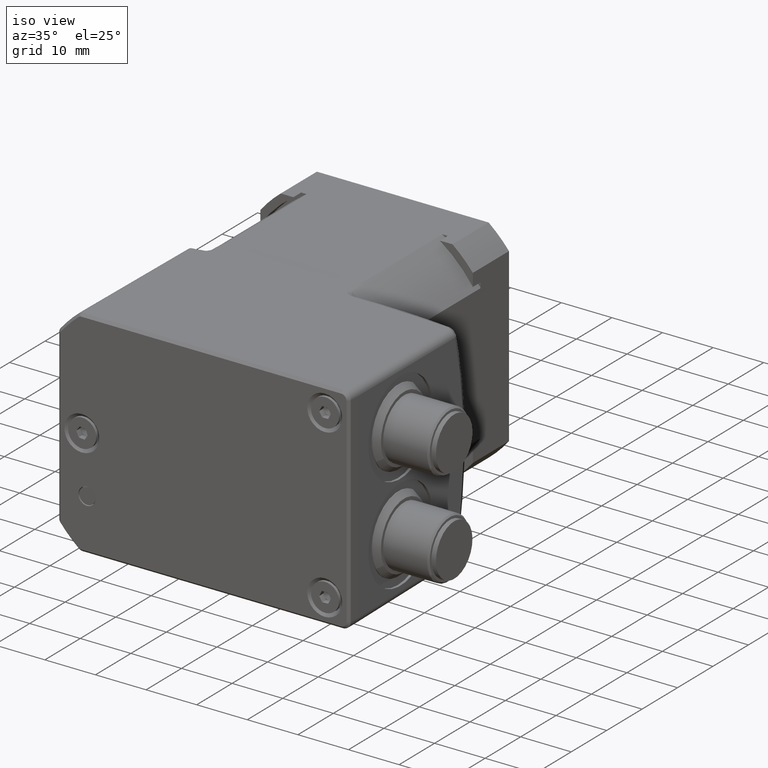
[diagram: clean part render]
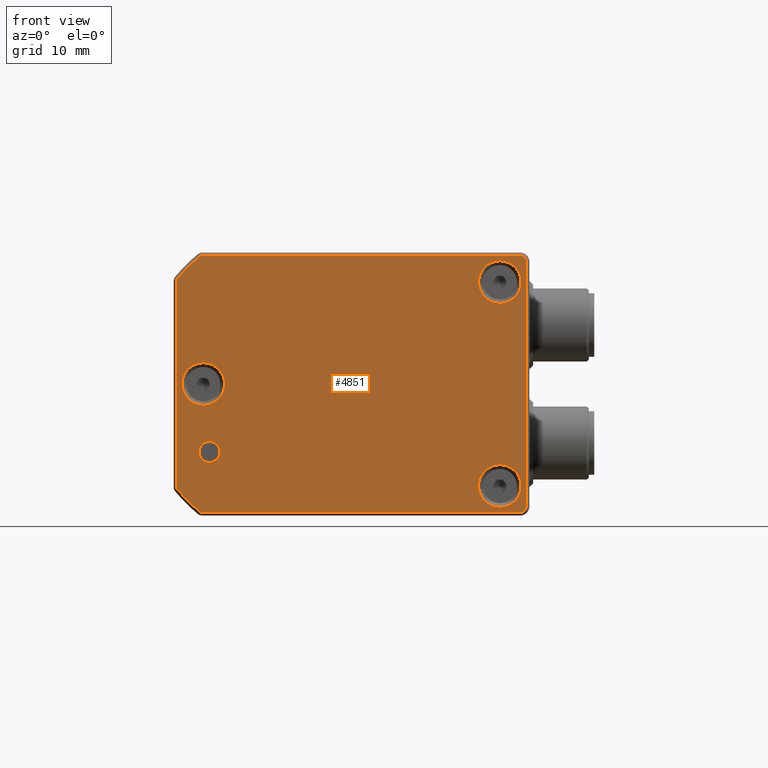
[diagram: tour spotlight — one face highlighted and labeled with its STEP entity id]
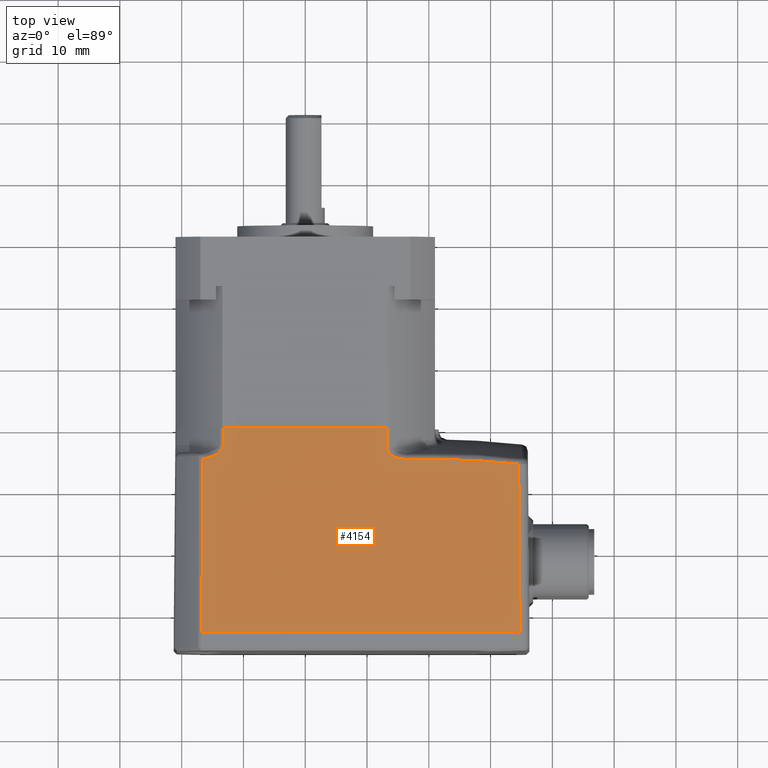
[diagram: tour spotlight — one face highlighted and labeled with its STEP entity id]
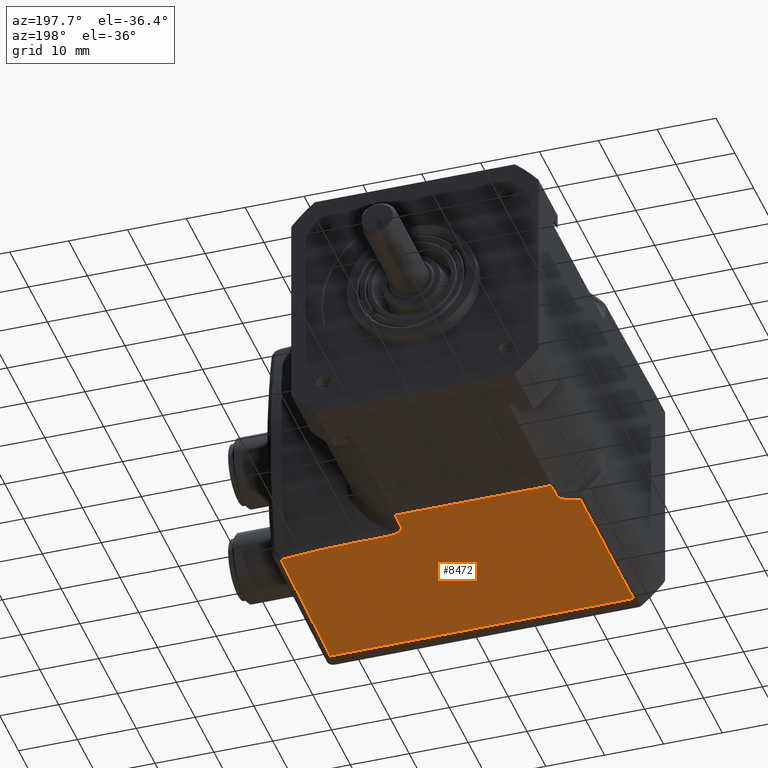
[diagram: tour spotlight — one face highlighted and labeled with its STEP entity id]
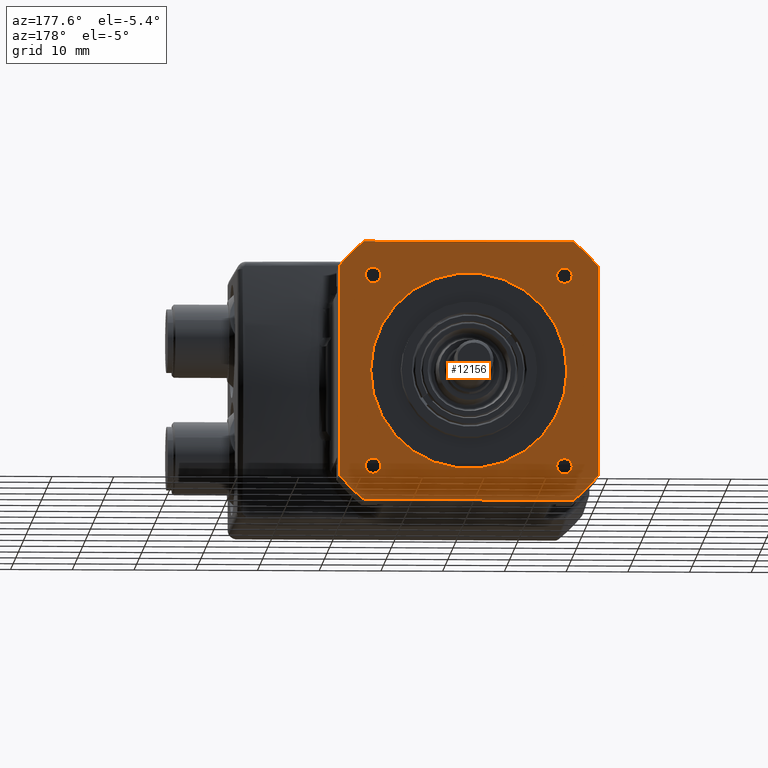
[diagram: tour spotlight — one face highlighted and labeled with its STEP entity id]
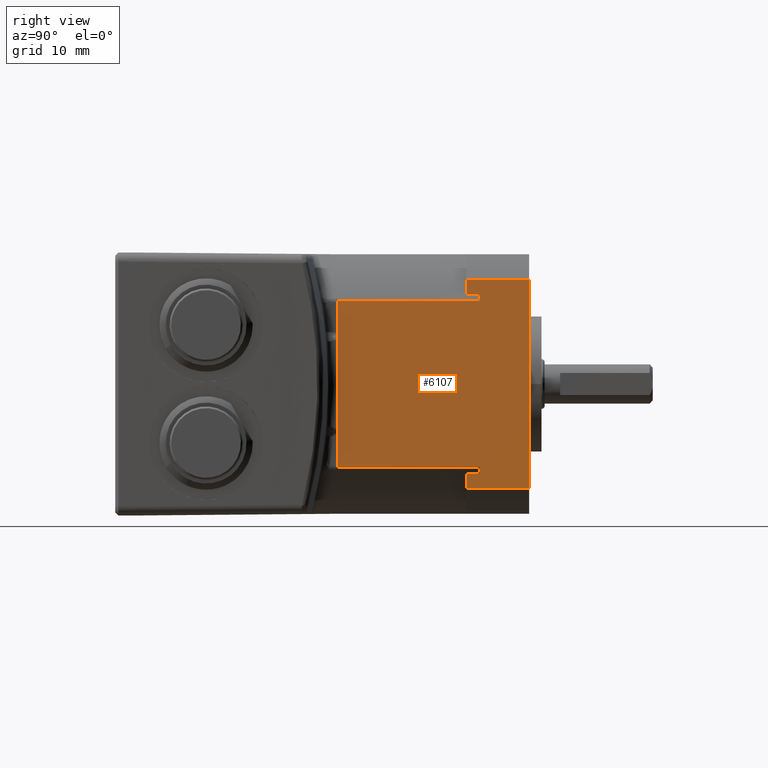
[diagram: tour spotlight — one face highlighted and labeled with its STEP entity id]
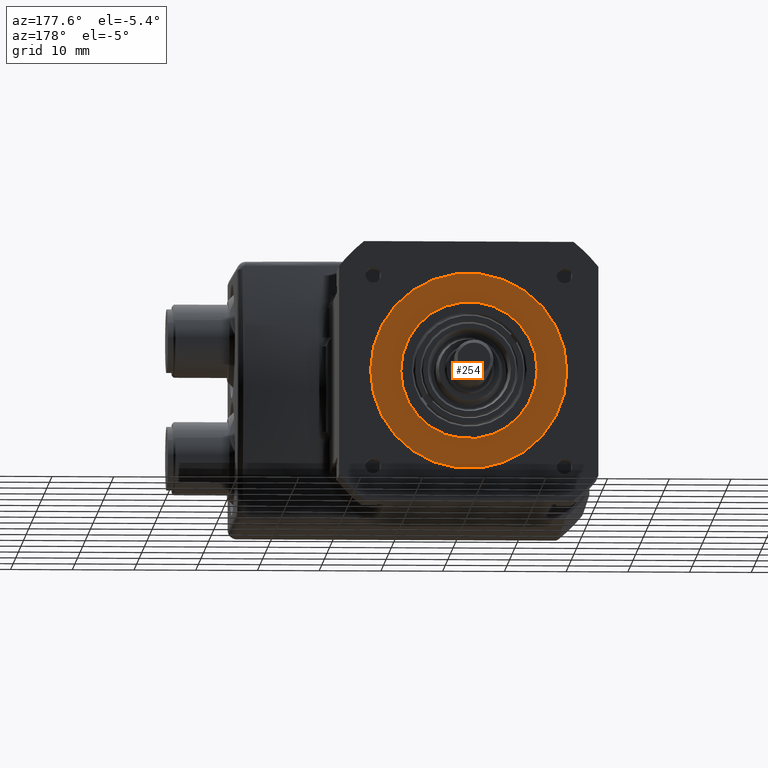
[diagram: tour spotlight — one face highlighted and labeled with its STEP entity id]
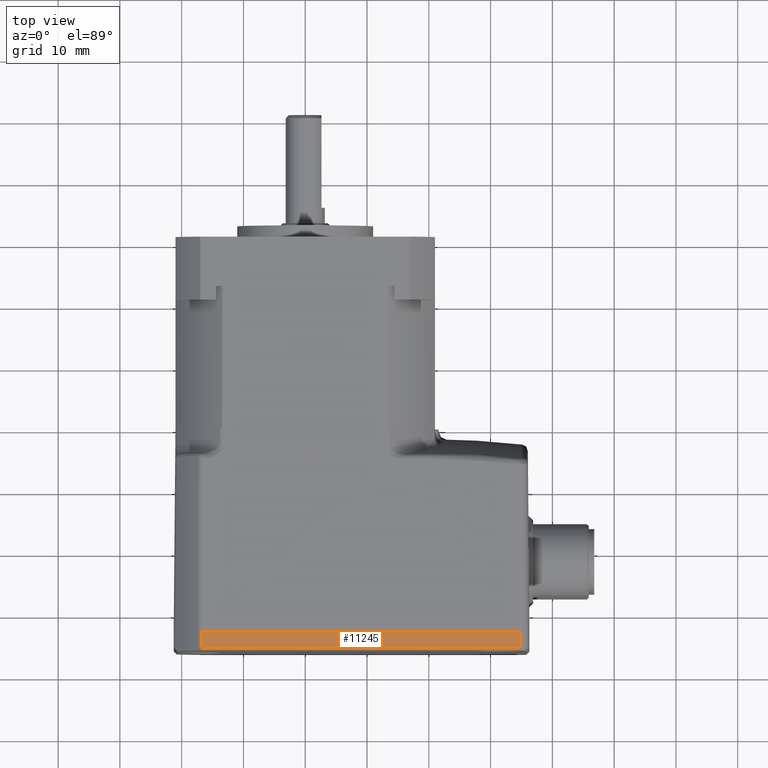
[diagram: tour spotlight — one face highlighted and labeled with its STEP entity id]
A machine part: a face-by-face anatomy tour. The part has 328 B-rep faces; the first image is the clean iso view, then the 7 largest visible faces are spotlighted one at a time (largest first), each with its STEP entity span.

Face 1 — front view, entity #4851. In plain terms, the highlighted planar face has unit normal (0, -1, -0).
Definition (entity closure, byte-faithful):
#18 = AXIS2_PLACEMENT_3D ( 'NONE', #6815, #10834, #1249 ) ;
#67 = CARTESIAN_POINT ( 'NONE',  ( 35.67990152686046912, -36.00000000000002842, 20.31026532904016690 ) ) ;
#92 = ORIENTED_EDGE ( 'NONE', *, *, #7876, .T. ) ;
#135 = ORIENTED_EDGE ( 'NONE', *, *, #8460, .T. ) ;
#345 = CARTESIAN_POINT ( 'NONE',  ( -20.28802709216845201, -35.99999999999993605, -16.71694724242501806 ) ) ;
#370 = DIRECTION ( 'NONE',  ( 0.000000000000000000, 2.011273595335391496E-15, -1.000000000000000000 ) ) ;
#578 = PLANE ( 'NONE',  #15642 ) ;
#702 = ORIENTED_EDGE ( 'NONE', *, *, #12796, .T. ) ;
#855 = LINE ( 'NONE', #3456, #6940 ) ;
#1249 = DIRECTION ( 'NONE',  ( 0.000000000000000000, 2.011273595335401357E-15, -1.000000000000000000 ) ) ;
#1275 = CARTESIAN_POINT ( 'NONE',  ( -20.78798663709505234, -35.99999999999993605, -16.71694681566501473 ) ) ;
#1351 = CARTESIAN_POINT ( 'NONE',  ( 34.78804375249880110, -35.99999999999993605, -20.78798663709504524 ) ) ;
#1481 = VERTEX_POINT ( 'NONE', #1351 ) ;
#1642 = CARTESIAN_POINT ( 'NONE',  ( -15.50000000000000000, -36.00000000000000000, -12.70000000000000107 ) ) ;
#1746 = CARTESIAN_POINT ( 'NONE',  ( 35.78798663709505234, -36.00000000000007105, 19.78804375249880465 ) ) ;
#1888 = FACE_BOUND ( 'NONE', #12014, .T. ) ;
#1995 = CARTESIAN_POINT ( 'NONE',  ( 31.50000000000000711, -35.99999999999993605, -16.49999999999998934 ) ) ;
#2130 = VERTEX_POINT ( 'NONE', #8850 ) ;
#2159 = CARTESIAN_POINT ( 'NONE',  ( -20.67387519523830974, -36.00000000000007105, 17.03487929164431236 ) ) ;
#2204 = DIRECTION ( 'NONE',  ( 0.000000000000000000, -1.000000000000000000, 2.442490654175344783E-15 ) ) ;
#2239 = DIRECTION ( 'NONE',  ( 0.000000000000000000, -2.220446049250313475E-15, 1.000000000000000000 ) ) ;
#2280 = CARTESIAN_POINT ( 'NONE',  ( 0.000000000000000000, -36.00000000000000711, 1.426636586643326786E-14 ) ) ;
#2386 = EDGE_LOOP ( 'NONE', ( #8253 ) ) ;
#2411 = EDGE_CURVE ( 'NONE', #16729, #14771, #4269, .T. ) ;
#2667 = DIRECTION ( 'NONE',  ( 0.000000000000000000, -1.000000000000000000, 2.442490654175344783E-15 ) ) ;
#2766 = ORIENTED_EDGE ( 'NONE', *, *, #3010, .T. ) ;
#2872 = EDGE_CURVE ( 'NONE', #4672, #4671, #3930, .T. ) ;
#2952 = CIRCLE ( 'NONE', #11325, 3.450000000000029488 ) ;
#3010 = EDGE_CURVE ( 'NONE', #8976, #16729, #4585, .T. ) ;
#3456 = CARTESIAN_POINT ( 'NONE',  ( 35.78798663709505234, -36.00000000000007105, 19.78804375249878689 ) ) ;
#3615 = EDGE_CURVE ( 'NONE', #6712, #4672, #15443, .T. ) ;
#3621 = CARTESIAN_POINT ( 'NONE',  ( 34.78804375249880110, -35.99999999999993605, -20.78798663709504524 ) ) ;
#3699 = DIRECTION ( 'NONE',  ( 0.000000000000000000, 0.000000000000000000, -1.000000000000000000 ) ) ;
#3712 = CARTESIAN_POINT ( 'NONE',  ( 35.78798663709505234, -35.99999999999993605, -19.78804375249876557 ) ) ;
#3737 = CARTESIAN_POINT ( 'NONE',  ( -20.28802709216850175, -36.00000000000007105, 16.71694724242504293 ) ) ;
#3856 = DIRECTION ( 'NONE',  ( -1.000000000000000000, 0.000000000000000000, 0.000000000000000000 ) ) ;
#3930 = CIRCLE ( 'NONE', #4752, 26.78798663709503103 ) ;
#4162 = VERTEX_POINT ( 'NONE', #4326 ) ;
#4246 = CARTESIAN_POINT ( 'NONE',  ( -16.50000000000000000, -36.00000000000000000, -3.450000000000057909 ) ) ;
#4269 = CIRCLE ( 'NONE', #14043, 26.78798663709503813 ) ;
#4310 = ORIENTED_EDGE ( 'NONE', *, *, #6986, .F. ) ;
#4326 = CARTESIAN_POINT ( 'NONE',  ( 31.50000000000000000, -36.00000000000006395, 13.04999999999995097 ) ) ;
#4521 = EDGE_CURVE ( 'NONE', #5631, #5631, #14797, .T. ) ;
#4585 = CIRCLE ( 'NONE', #9593, 0.4999595449269589320 ) ;
#4605 = B_SPLINE_CURVE_WITH_KNOTS ( 'NONE', 3,
 ( #3621, #16972, #13122, #12931, #10314, #3712 ),
 .UNSPECIFIED., .F., .F.,
 ( 4, 2, 4 ),
 ( 0.000000000000000000, 0.5000000000000000000, 1.000000000000000000 ),
 .UNSPECIFIED. ) ;
#4671 = VERTEX_POINT ( 'NONE', #2159 ) ;
#4672 = VERTEX_POINT ( 'NONE', #6451 ) ;
#4728 = CIRCLE ( 'NONE', #14775, 0.4999595449269068625 ) ;
#4752 = AXIS2_PLACEMENT_3D ( 'NONE', #6467, #9853, #5660 ) ;
#4851 = ADVANCED_FACE ( 'NONE', ( #13847, #12517, #8759, #10125, #1888 ), #578, .T. ) ;
#5196 = CARTESIAN_POINT ( 'NONE',  ( -20.78798663709505234, -35.99999999999993605, -16.71694638887047901 ) ) ;
#5367 = CARTESIAN_POINT ( 'NONE',  ( 34.78804375249878689, -35.99999999999993605, -20.78798663709504524 ) ) ;
#5472 = DIRECTION ( 'NONE',  ( 0.000000000000000000, -1.000000000000000000, 2.442490654175344783E-15 ) ) ;
#5604 = DIRECTION ( 'NONE',  ( -0.000000000000000000, 1.000000000000000000, -2.442490654175344783E-15 ) ) ;
#5631 = VERTEX_POINT ( 'NONE', #4246 ) ;
#5660 = DIRECTION ( 'NONE',  ( 0.000000000000000000, 2.331270579651794438E-15, -1.000000000000000000 ) ) ;
#5734 = CARTESIAN_POINT ( 'NONE',  ( 35.78797974128356429, -36.00000000000002132, 20.05107121304205364 ) ) ;
#5966 = CARTESIAN_POINT ( 'NONE',  ( 34.78792951951643886, -35.99999999999993605, -19.78792951951643175 ) ) ;
#5972 = CARTESIAN_POINT ( 'NONE',  ( -20.67387492383302927, -35.99999999999993605, -17.03487962102668973 ) ) ;
#6451 = CARTESIAN_POINT ( 'NONE',  ( -17.03487962102668973, -36.00000000000007105, 20.67387492383302927 ) ) ;
#6464 = CARTESIAN_POINT ( 'NONE',  ( 35.78798663709505234, -35.99999999999993605, -19.78804375249876557 ) ) ;
#6467 = CARTESIAN_POINT ( 'NONE',  ( 0.000000000000000000, -36.00000000000000711, 1.426636586643326786E-14 ) ) ;
#6712 = VERTEX_POINT ( 'NONE', #11874 ) ;
#6800 = CARTESIAN_POINT ( 'NONE',  ( -15.50000000000000000, -36.00000000000000711, -11.00000000000000178 ) ) ;
#6815 = CARTESIAN_POINT ( 'NONE',  ( 31.50000000000000000, -36.00000000000007105, 16.49999999999999645 ) ) ;
#6940 = VECTOR ( 'NONE', #2239, 1000.000000000000000 ) ;
#6965 = CARTESIAN_POINT ( 'NONE',  ( 34.78804375249877978, -36.00000000000007105, 20.78798663709505234 ) ) ;
#6986 = EDGE_CURVE ( 'NONE', #9734, #9734, #17257, .T. ) ;
#7087 = EDGE_CURVE ( 'NONE', #12777, #11145, #855, .T. ) ;
#7396 = EDGE_CURVE ( 'NONE', #16810, #1481, #9226, .T. ) ;
#7420 = EDGE_CURVE ( 'NONE', #13665, #8976, #8180, .T. ) ;
#7540 = CIRCLE ( 'NONE', #18, 3.450000000000046807 ) ;
#7745 = EDGE_CURVE ( 'NONE', #4671, #13665, #4728, .T. ) ;
#7808 = EDGE_LOOP ( 'NONE', ( #4310 ) ) ;
#7860 = ORIENTED_EDGE ( 'NONE', *, *, #8440, .T. ) ;
#7876 = EDGE_CURVE ( 'NONE', #11145, #14330, #16237, .T. ) ;
#7905 = AXIS2_PLACEMENT_3D ( 'NONE', #14358, #2204, #3699 ) ;
#8028 = DIRECTION ( 'NONE',  ( 0.000000000000000000, 0.000000000000000000, -1.000000000000000000 ) ) ;
#8081 = CARTESIAN_POINT ( 'NONE',  ( -17.03487962102669684, -35.99999999999993605, -20.67387492383302217 ) ) ;
#8180 = LINE ( 'NONE', #5196, #13650 ) ;
#8253 = ORIENTED_EDGE ( 'NONE', *, *, #4521, .T. ) ;
#8377 = CIRCLE ( 'NONE', #11984, 0.4999595449269658709 ) ;
#8421 = EDGE_LOOP ( 'NONE', ( #13499 ) ) ;
#8440 = EDGE_CURVE ( 'NONE', #14330, #6712, #16002, .T. ) ;
#8460 = EDGE_CURVE ( 'NONE', #4162, #4162, #7540, .T. ) ;
#8759 = FACE_BOUND ( 'NONE', #2386, .T. ) ;
#8765 = EDGE_CURVE ( 'NONE', #2130, #2130, #2952, .T. ) ;
#8772 = ORIENTED_EDGE ( 'NONE', *, *, #7396, .T. ) ;
#8850 = CARTESIAN_POINT ( 'NONE',  ( 31.50000000000000711, -35.99999999999992895, -19.95000000000002061 ) ) ;
#8894 = EDGE_CURVE ( 'NONE', #1481, #12777, #4605, .T. ) ;
#8976 = VERTEX_POINT ( 'NONE', #1275 ) ;
#9061 = DIRECTION ( 'NONE',  ( 0.000000000000000000, 0.000000000000000000, -1.000000000000000000 ) ) ;
#9167 = AXIS2_PLACEMENT_3D ( 'NONE', #6800, #5472, #16257 ) ;
#9226 = LINE ( 'NONE', #5367, #16163 ) ;
#9406 = CARTESIAN_POINT ( 'NONE',  ( 34.78804375249877978, -36.00000000000007105, 20.78798663709505234 ) ) ;
#9537 = ORIENTED_EDGE ( 'NONE', *, *, #7087, .T. ) ;
#9593 = AXIS2_PLACEMENT_3D ( 'NONE', #345, #12389, #9856 ) ;
#9734 = VERTEX_POINT ( 'NONE', #1642 ) ;
#9853 = DIRECTION ( 'NONE',  ( 0.000000000000000000, -1.000000000000000000, 2.442490654175344783E-15 ) ) ;
#9856 = DIRECTION ( 'NONE',  ( 0.000000000000000000, 0.000000000000000000, -1.000000000000000000 ) ) ;
#10060 = DIRECTION ( 'NONE',  ( 0.000000000000000000, 2.220446049250313475E-15, -1.000000000000000000 ) ) ;
#10076 = DIRECTION ( 'NONE',  ( 0.000000000000000000, 2.011273595335411217E-15, -1.000000000000000000 ) ) ;
#10125 = FACE_BOUND ( 'NONE', #8421, .T. ) ;
#10314 = CARTESIAN_POINT ( 'NONE',  ( 35.78797941222448031, -35.99999999999993605, -20.05208815120768051 ) ) ;
#10404 = CARTESIAN_POINT ( 'NONE',  ( -16.71694681566501828, -35.99999999999993605, -20.78798663709504524 ) ) ;
#10516 = DIRECTION ( 'NONE',  ( -2.075407117572287477E-16, 2.220446049250313475E-15, -1.000000000000000000 ) ) ;
#10834 = DIRECTION ( 'NONE',  ( -0.000000000000000000, 1.000000000000000000, -2.442490654175344783E-15 ) ) ;
#11145 = VERTEX_POINT ( 'NONE', #15887 ) ;
#11325 = AXIS2_PLACEMENT_3D ( 'NONE', #1995, #12358, #10076 ) ;
#11514 = ORIENTED_EDGE ( 'NONE', *, *, #2411, .T. ) ;
#11874 = CARTESIAN_POINT ( 'NONE',  ( -16.71694681566501473, -36.00000000000007105, 20.78798663709505234 ) ) ;
#11984 = AXIS2_PLACEMENT_3D ( 'NONE', #14679, #15720, #8028 ) ;
#12014 = EDGE_LOOP ( 'NONE', ( #135 ) ) ;
#12328 = CARTESIAN_POINT ( 'NONE',  ( -16.50000000000000000, -36.00000000000000711, 5.592748486549233172E-15 ) ) ;
#12358 = DIRECTION ( 'NONE',  ( -0.000000000000000000, 1.000000000000000000, -2.442490654175344783E-15 ) ) ;
#12389 = DIRECTION ( 'NONE',  ( 0.000000000000000000, -1.000000000000000000, 2.442490654175344783E-15 ) ) ;
#12515 = CARTESIAN_POINT ( 'NONE',  ( -20.78798663709467931, -36.00000000000007105, 16.71694638887048256 ) ) ;
#12517 = FACE_BOUND ( 'NONE', #7808, .T. ) ;
#12674 = EDGE_LOOP ( 'NONE', ( #2766, #11514, #702, #8772, #14779, #9537, #92, #7860, #13330, #13513, #13688, #12677 ) ) ;
#12677 = ORIENTED_EDGE ( 'NONE', *, *, #7420, .T. ) ;
#12777 = VERTEX_POINT ( 'NONE', #6464 ) ;
#12796 = EDGE_CURVE ( 'NONE', #14771, #16810, #8377, .T. ) ;
#12914 = DIRECTION ( 'NONE',  ( 0.000000000000000000, -1.000000000000000000, 2.442490654175344783E-15 ) ) ;
#12931 = CARTESIAN_POINT ( 'NONE',  ( 35.68047468219540264, -35.99999999999992895, -20.30982658335108226 ) ) ;
#13002 = DIRECTION ( 'NONE',  ( 0.000000000000000000, 2.331270579651793650E-15, -1.000000000000000000 ) ) ;
#13076 = AXIS2_PLACEMENT_3D ( 'NONE', #12328, #5604, #370 ) ;
#13122 = CARTESIAN_POINT ( 'NONE',  ( 35.31026532903842963, -35.99999999999993605, -20.67990152686302707 ) ) ;
#13330 = ORIENTED_EDGE ( 'NONE', *, *, #3615, .T. ) ;
#13499 = ORIENTED_EDGE ( 'NONE', *, *, #8765, .T. ) ;
#13513 = ORIENTED_EDGE ( 'NONE', *, *, #2872, .T. ) ;
#13650 = VECTOR ( 'NONE', #10516, 1000.000000000000000 ) ;
#13665 = VERTEX_POINT ( 'NONE', #12515 ) ;
#13688 = ORIENTED_EDGE ( 'NONE', *, *, #7745, .T. ) ;
#13847 = FACE_OUTER_BOUND ( 'NONE', #12674, .T. ) ;
#14043 = AXIS2_PLACEMENT_3D ( 'NONE', #2280, #12914, #13002 ) ;
#14330 = VERTEX_POINT ( 'NONE', #6965 ) ;
#14358 = CARTESIAN_POINT ( 'NONE',  ( -16.71694724242501806, -36.00000000000007105, 20.28802709216845201 ) ) ;
#14653 = DIRECTION ( 'NONE',  ( 1.000000000000000000, 0.000000000000000000, 0.000000000000000000 ) ) ;
#14679 = CARTESIAN_POINT ( 'NONE',  ( -16.71694724242502161, -35.99999999999993605, -20.28802709216844136 ) ) ;
#14771 = VERTEX_POINT ( 'NONE', #8081 ) ;
#14775 = AXIS2_PLACEMENT_3D ( 'NONE', #3737, #2667, #9061 ) ;
#14779 = ORIENTED_EDGE ( 'NONE', *, *, #8894, .T. ) ;
#14797 = CIRCLE ( 'NONE', #13076, 3.450000000000063682 ) ;
#15091 = VECTOR ( 'NONE', #3856, 1000.000000000000000 ) ;
#15443 = CIRCLE ( 'NONE', #7905, 0.4999595449269589320 ) ;
#15642 = AXIS2_PLACEMENT_3D ( 'NONE', #5966, #16716, #10060 ) ;
#15720 = DIRECTION ( 'NONE',  ( 0.000000000000000000, -1.000000000000000000, 2.442490654175344783E-15 ) ) ;
#15887 = CARTESIAN_POINT ( 'NONE',  ( 35.78798663709505234, -36.00000000000007105, 19.78804375249880465 ) ) ;
#16002 = LINE ( 'NONE', #16086, #15091 ) ;
#16060 = CARTESIAN_POINT ( 'NONE',  ( 35.05208815120682431, -36.00000000000002842, 20.78797941222457624 ) ) ;
#16086 = CARTESIAN_POINT ( 'NONE',  ( -16.71694638887047901, -36.00000000000007105, 20.78798663709505234 ) ) ;
#16163 = VECTOR ( 'NONE', #14653, 1000.000000000000000 ) ;
#16237 = B_SPLINE_CURVE_WITH_KNOTS ( 'NONE', 3,
 ( #1746, #5734, #67, #16413, #16060, #9406 ),
 .UNSPECIFIED., .F., .F.,
 ( 4, 2, 4 ),
 ( 0.000000000000000000, 0.5000000000000000000, 1.000000000000000000 ),
 .UNSPECIFIED. ) ;
#16257 = DIRECTION ( 'NONE',  ( 0.000000000000000000, 4.081702296416015997E-15, -1.000000000000000000 ) ) ;
#16413 = CARTESIAN_POINT ( 'NONE',  ( 35.30982658335368285, -36.00000000000001421, 20.68047468219365825 ) ) ;
#16716 = DIRECTION ( 'NONE',  ( 0.000000000000000000, -1.000000000000000000, -2.220446049250313475E-15 ) ) ;
#16729 = VERTEX_POINT ( 'NONE', #5972 ) ;
#16810 = VERTEX_POINT ( 'NONE', #10404 ) ;
#16972 = CARTESIAN_POINT ( 'NONE',  ( 35.05107121305616147, -35.99999999999994316, -20.78797974128358561 ) ) ;
#17257 = CIRCLE ( 'NONE', #9167, 1.700000000000000178 ) ;

Face 2 — top view, entity #4154. In plain terms, the highlighted planar face has unit normal (0, 0.0087, 1).
Definition (entity closure, byte-faithful):
#358 = CARTESIAN_POINT ( 'NONE',  ( -13.80463379820102077, -3.847083223858680512, 21.03357298667466679 ) ) ;
#366 = DIRECTION ( 'NONE',  ( 1.110180750734292354E-16, 0.008726535498373953759, 0.9999619230641713097 ) ) ;
#548 = ORIENTED_EDGE ( 'NONE', *, *, #12661, .T. ) ;
#693 = EDGE_CURVE ( 'NONE', #12285, #13365, #13196, .T. ) ;
#942 = CARTESIAN_POINT ( 'NONE',  ( -16.65834741103417471, -14.31609715021032869, 21.12493468710954758 ) ) ;
#960 = CARTESIAN_POINT ( 'NONE',  ( -13.27126614799591309, -1.807562995752081791, 21.01577436328739878 ) ) ;
#1084 = EDGE_CURVE ( 'NONE', #4421, #3105, #11521, .T. ) ;
#1168 = CARTESIAN_POINT ( 'NONE',  ( 13.43664063336854575, -3.867833794401229319, 21.03375407416037390 ) ) ;
#1469 = CARTESIAN_POINT ( 'NONE',  ( 16.35529392151100581, -5.076455210572589749, 21.04430155346837239 ) ) ;
#1482 = CARTESIAN_POINT ( 'NONE',  ( -13.27364294288162405, -2.711344496147886307, 21.02366154495308592 ) ) ;
#1484 = VECTOR ( 'NONE', #1789, 1000.000000000000000 ) ;
#1683 = VECTOR ( 'NONE', #12138, 1000.000000000000000 ) ;
#1777 = CARTESIAN_POINT ( 'NONE',  ( -14.86398107328917817, -4.553333927044440621, 21.03973634318849761 ) ) ;
#1789 = DIRECTION ( 'NONE',  ( -1.000000000000000000, -0.000000000000000000, 1.110223024625156540E-16 ) ) ;
#1861 = CARTESIAN_POINT ( 'NONE',  ( -13.56500440688274622, -3.568698188384666459, 21.03114355727515772 ) ) ;
#1868 = EDGE_CURVE ( 'NONE', #9984, #13779, #7011, .T. ) ;
#1960 = CARTESIAN_POINT ( 'NONE',  ( 15.36276534976432373, -5.076455210572589749, 21.04430155346837594 ) ) ;
#2073 = CARTESIAN_POINT ( 'NONE',  ( 34.78804375249877978, -33.00000000000000000, 21.28798663709503813 ) ) ;
#2163 = DIRECTION ( 'NONE',  ( -9.688400635503528767E-19, 0.9999619230641713097, -0.008726535498373953759 ) ) ;
#2369 = B_SPLINE_CURVE_WITH_KNOTS ( 'NONE', 3,
 ( #3207, #12638, #960, #15375 ),
 .UNSPECIFIED., .F., .F.,
 ( 4, 4 ),
 ( 0.000000000000000000, 0.002711457120298277866 ),
 .UNSPECIFIED. ) ;
#2534 = CARTESIAN_POINT ( 'NONE',  ( 14.59184732250563954, -4.765646471816059382, 21.04158916669703672 ) ) ;
#2610 = CARTESIAN_POINT ( 'NONE',  ( 13.53049117700720139, -4.009229905212849054, 21.03498801932555651 ) ) ;
#2634 = CARTESIAN_POINT ( 'NONE',  ( -13.27364294288162405, -2.711344496147886307, 21.02366154495308592 ) ) ;
#2714 = CARTESIAN_POINT ( 'NONE',  ( 34.50017133098918265, -0.01308780975893345834, 21.00011421558543390 ) ) ;
#2883 = CARTESIAN_POINT ( 'NONE',  ( 36.00000000000000711, -0.000000000000000000, 20.99999999999999645 ) ) ;
#3034 = EDGE_CURVE ( 'NONE', #3105, #8730, #9457, .T. ) ;
#3056 = CARTESIAN_POINT ( 'NONE',  ( -13.32339093906628946, -3.073752674171688959, 21.02682423320899474 ) ) ;
#3105 = VERTEX_POINT ( 'NONE', #4482 ) ;
#3207 = CARTESIAN_POINT ( 'NONE',  ( -13.26651064204475183, 0.000000000000000000, 21.00000000000000000 ) ) ;
#3490 = ORIENTED_EDGE ( 'NONE', *, *, #3034, .T. ) ;
#3645 = CARTESIAN_POINT ( 'NONE',  ( -16.62893146016846657, -4.974146091519224377, 21.04340871531261570 ) ) ;
#3768 = CARTESIAN_POINT ( 'NONE',  ( 15.22025181472567468, -4.957470523609026181, 21.04326318983612509 ) ) ;
#3806 = CARTESIAN_POINT ( 'NONE',  ( 34.55107688260258669, -5.846286253226983476, 21.05101976719884149 ) ) ;
#3886 = CARTESIAN_POINT ( 'NONE',  ( 13.27217426981139781, -2.152794463098150146, 21.01878715266013486 ) ) ;
#3905 = ORIENTED_EDGE ( 'NONE', *, *, #6769, .T. ) ;
#3951 = CARTESIAN_POINT ( 'NONE',  ( 13.27544512875239135, -3.396673393584749956, 21.02964231963420971 ) ) ;
#4050 = CARTESIAN_POINT ( 'NONE',  ( -16.62893146016846657, -4.974146091519224377, 21.04340871531261570 ) ) ;
#4101 = VECTOR ( 'NONE', #15043, 1000.000000000000000 ) ;
#4154 = ADVANCED_FACE ( 'NONE', ( #13302 ), #12635, .T. ) ;
#4421 = VERTEX_POINT ( 'NONE', #3806 ) ;
#4482 = CARTESIAN_POINT ( 'NONE',  ( 21.00000000000000355, -5.076455210572573762, 21.04430155346837239 ) ) ;
#4524 = EDGE_CURVE ( 'NONE', #10096, #4421, #16103, .T. ) ;
#4528 = B_SPLINE_CURVE_WITH_KNOTS ( 'NONE', 3,
 ( #10380, #5327, #7952, #3768, #13091, #17219, #2534, #10567, #10662, #2610, #1168, #10470, #3951, #9267 ),
 .UNSPECIFIED., .F., .F.,
 ( 4, 2, 2, 2, 2, 2, 4 ),
 ( 2.886112785300462885E-16, 0.0009761040017545396467, 0.001464156002631667765, 0.001952208003508795883, 0.002928312005263048433, 0.003416364006140174599, 0.003904416007017301200 ),
 .UNSPECIFIED. ) ;
#5045 = VERTEX_POINT ( 'NONE', #1482 ) ;
#5327 = CARTESIAN_POINT ( 'NONE',  ( 16.02514959109786119, -5.076455210571976018, 21.04430155346836884 ) ) ;
#5351 = CARTESIAN_POINT ( 'NONE',  ( -15.20221064174879366, -4.685352672013581632, 21.04088845332174529 ) ) ;
#5634 = VERTEX_POINT ( 'NONE', #5794 ) ;
#5794 = CARTESIAN_POINT ( 'NONE',  ( 13.27500472495801453, -3.229191698220409634, 21.02818072902138624 ) ) ;
#6396 = CARTESIAN_POINT ( 'NONE',  ( 13.26651064204474118, -0.000000000000000000, 21.00000000000000000 ) ) ;
#6654 = CARTESIAN_POINT ( 'NONE',  ( -13.26651064204475183, 0.000000000000000000, 21.00000000000000000 ) ) ;
#6677 = CARTESIAN_POINT ( 'NONE',  ( -13.93931508663196084, -3.969644800219680025, 21.03464256534779153 ) ) ;
#6769 = EDGE_CURVE ( 'NONE', #8730, #5634, #4528, .T. ) ;
#7011 = LINE ( 'NONE', #2883, #4101 ) ;
#7309 = DIRECTION ( 'NONE',  ( -1.000000000000000000, -0.000000000000000000, 1.110223024625156540E-16 ) ) ;
#7416 = CARTESIAN_POINT ( 'NONE',  ( 36.00000000000000711, 0.000000000000000000, 20.99999999999999645 ) ) ;
#7478 = EDGE_CURVE ( 'NONE', #10096, #13365, #15071, .T. ) ;
#7574 = CARTESIAN_POINT ( 'NONE',  ( -16.62893146016846657, -4.974146091519224377, 21.04340871531261570 ) ) ;
#7819 = CARTESIAN_POINT ( 'NONE',  ( 13.26651064204474118, -0.000000000000000000, 21.00000000000000000 ) ) ;
#7952 = CARTESIAN_POINT ( 'NONE',  ( 15.69990834376373812, -5.047945686576129631, 21.04405275462168134 ) ) ;
#7978 = ORIENTED_EDGE ( 'NONE', *, *, #12519, .T. ) ;
#7981 = CARTESIAN_POINT ( 'NONE',  ( -13.27388698775817133, -2.804143099007612605, 21.02447138609141319 ) ) ;
#8402 = CARTESIAN_POINT ( 'NONE',  ( -13.35262816445027845, -3.162293308259179980, 21.02759691561677968 ) ) ;
#8485 = CARTESIAN_POINT ( 'NONE',  ( -13.46244015933308802, -3.414985858088793513, 21.02980213009086086 ) ) ;
#8518 = ORIENTED_EDGE ( 'NONE', *, *, #1868, .T. ) ;
#8730 = VERTEX_POINT ( 'NONE', #1469 ) ;
#8856 = CARTESIAN_POINT ( 'NONE',  ( 13.27500472495801453, -3.229191698220409634, 21.02818072902138624 ) ) ;
#9026 = CARTESIAN_POINT ( 'NONE',  ( 21.00000000000000355, -5.076455210572573762, 21.04430155346837239 ) ) ;
#9267 = CARTESIAN_POINT ( 'NONE',  ( 13.27500472495801453, -3.229191698220409634, 21.02818072902138624 ) ) ;
#9457 = LINE ( 'NONE', #1960, #1484 ) ;
#9984 = VERTEX_POINT ( 'NONE', #6396 ) ;
#10096 = VERTEX_POINT ( 'NONE', #2073 ) ;
#10235 = CARTESIAN_POINT ( 'NONE',  ( -16.68768531182515247, -23.65804845496275632, 21.20646066105382843 ) ) ;
#10307 = CARTESIAN_POINT ( 'NONE',  ( 30.04863403530652022, -5.332999678608075556, 21.04654038312336795 ) ) ;
#10380 = CARTESIAN_POINT ( 'NONE',  ( 16.35529392151100581, -5.076455210572589749, 21.04430155346837239 ) ) ;
#10470 = CARTESIAN_POINT ( 'NONE',  ( 13.30955144086236253, -3.562980654040698081, 21.03109366110884437 ) ) ;
#10567 = CARTESIAN_POINT ( 'NONE',  ( 14.14180946236982805, -4.559342145381765299, 21.03978877611558218 ) ) ;
#10662 = CARTESIAN_POINT ( 'NONE',  ( 13.85769534988263274, -4.376033196383120050, 21.03818906315280657 ) ) ;
#10688 = CARTESIAN_POINT ( 'NONE',  ( -16.26624457736815899, -4.945702237517680011, 21.04316048955928053 ) ) ;
#10808 = ORIENTED_EDGE ( 'NONE', *, *, #4524, .T. ) ;
#11521 = B_SPLINE_CURVE_WITH_KNOTS ( 'NONE', 3,
 ( #16965, #10307, #15671, #9026 ),
 .UNSPECIFIED., .F., .F.,
 ( 4, 4 ),
 ( 0.000000000000000000, 0.01357292782147006931 ),
 .UNSPECIFIED. ) ;
#11664 = CARTESIAN_POINT ( 'NONE',  ( -16.71694638887047901, -33.00000000000000000, 21.28798663709504524 ) ) ;
#11991 = CARTESIAN_POINT ( 'NONE',  ( -14.22928057247809441, -4.191719916531988943, 21.03658058552747079 ) ) ;
#12138 = DIRECTION ( 'NONE',  ( -0.008726203243944238158, 0.9999238504775704861, -0.008726203243944234689 ) ) ;
#12241 = AXIS2_PLACEMENT_3D ( 'NONE', #7416, #366, #2163 ) ;
#12285 = VERTEX_POINT ( 'NONE', #3645 ) ;
#12312 = ORIENTED_EDGE ( 'NONE', *, *, #16156, .T. ) ;
#12402 = CARTESIAN_POINT ( 'NONE',  ( -15.90813117243372332, -4.883178349068247215, 21.04261485185101677 ) ) ;
#12519 = EDGE_CURVE ( 'NONE', #5634, #9984, #16847, .T. ) ;
#12635 = PLANE ( 'NONE',  #12241 ) ;
#12638 = CARTESIAN_POINT ( 'NONE',  ( -13.26888871472691100, -0.9037814970347650689, 21.00788718163635949 ) ) ;
#12661 = EDGE_CURVE ( 'NONE', #5045, #12285, #14351, .T. ) ;
#13025 = CARTESIAN_POINT ( 'NONE',  ( 13.26934290942046246, -1.076397230355724988, 21.00939357631965620 ) ) ;
#13091 = CARTESIAN_POINT ( 'NONE',  ( 15.06175192124686291, -4.919255315850358024, 21.04292969077041775 ) ) ;
#13196 = B_SPLINE_CURVE_WITH_KNOTS ( 'NONE', 3,
 ( #7574, #942, #10235, #11664 ),
 .UNSPECIFIED., .F., .F.,
 ( 4, 4 ),
 ( 0.0003793983398957994691, 0.02840645762707386807 ),
 .UNSPECIFIED. ) ;
#13296 = CARTESIAN_POINT ( 'NONE',  ( -13.28425148451028903, -2.895118504404110560, 21.02526531642651619 ) ) ;
#13302 = FACE_OUTER_BOUND ( 'NONE', #13440, .T. ) ;
#13365 = VERTEX_POINT ( 'NONE', #14977 ) ;
#13440 = EDGE_LOOP ( 'NONE', ( #8518, #12312, #548, #13727, #14300, #10808, #13865, #3490, #3905, #7978 ) ) ;
#13727 = ORIENTED_EDGE ( 'NONE', *, *, #693, .T. ) ;
#13739 = CARTESIAN_POINT ( 'NONE',  ( -14.38521820532706030, -4.291071512539132549, 21.03744761377062744 ) ) ;
#13772 = CARTESIAN_POINT ( 'NONE',  ( 36.00000000000000711, -33.00000000000000000, 21.28798663709503813 ) ) ;
#13779 = VERTEX_POINT ( 'NONE', #6654 ) ;
#13865 = ORIENTED_EDGE ( 'NONE', *, *, #1084, .T. ) ;
#14300 = ORIENTED_EDGE ( 'NONE', *, *, #7478, .F. ) ;
#14351 = B_SPLINE_CURVE_WITH_KNOTS ( 'NONE', 3,
 ( #2634, #7981, #13296, #3056, #8402, #8485, #1861, #358, #6677, #11991, #13739, #1777, #5351, #12402, #10688, #4050 ),
 .UNSPECIFIED., .F., .F.,
 ( 4, 2, 2, 2, 2, 2, 2, 4 ),
 ( 0.000000000000000000, 0.0002741252672472539579, 0.0005482505344945079158, 0.001096501068989013663, 0.001644751603483519519, 0.002193002137978025158, 0.003289503206967032099, 0.004386004275956044245 ),
 .UNSPECIFIED. ) ;
#14977 = CARTESIAN_POINT ( 'NONE',  ( -16.71694638887047901, -33.00000000000000000, 21.28798663709504524 ) ) ;
#15043 = DIRECTION ( 'NONE',  ( -1.000000000000000000, 0.000000000000000000, 1.110223024625156540E-16 ) ) ;
#15071 = LINE ( 'NONE', #13772, #15903 ) ;
#15375 = CARTESIAN_POINT ( 'NONE',  ( -13.27364294288162405, -2.711344496147886307, 21.02366154495308592 ) ) ;
#15671 = CARTESIAN_POINT ( 'NONE',  ( 25.53160466489939040, -5.076455210572579979, 21.04430155346837239 ) ) ;
#15903 = VECTOR ( 'NONE', #7309, 1000.000000000000000 ) ;
#16103 = LINE ( 'NONE', #2714, #1683 ) ;
#16156 = EDGE_CURVE ( 'NONE', #13779, #5045, #2369, .T. ) ;
#16847 = B_SPLINE_CURVE_WITH_KNOTS ( 'NONE', 3,
 ( #8856, #3886, #13025, #7819 ),
 .UNSPECIFIED., .F., .F.,
 ( 4, 4 ),
 ( 0.000000000000000000, 0.003229325831623116195 ),
 .UNSPECIFIED. ) ;
#16965 = CARTESIAN_POINT ( 'NONE',  ( 34.55107688260258669, -5.846286253226983476, 21.05101976719884149 ) ) ;
#17219 = CARTESIAN_POINT ( 'NONE',  ( 14.74806140095794582, -4.823582799806199972, 21.04209476937169043 ) ) ;

Face 3 — auxiliary view, entity #8472. In plain terms, the highlighted planar face has unit normal (-0, 0.0087, -1).
Definition (entity closure, byte-faithful):
#31 = VECTOR ( 'NONE', #2736, 1000.000000000000000 ) ;
#316 = ORIENTED_EDGE ( 'NONE', *, *, #15017, .F. ) ;
#589 = CARTESIAN_POINT ( 'NONE',  ( 13.26651064204473407, 0.000000000000000000, -21.00000000000000000 ) ) ;
#597 = VERTEX_POINT ( 'NONE', #13804 ) ;
#629 = VECTOR ( 'NONE', #14651, 1000.000000000000000 ) ;
#1005 = VERTEX_POINT ( 'NONE', #12528 ) ;
#1209 = CARTESIAN_POINT ( 'NONE',  ( 20.99999999999999645, -5.076455210572589749, -21.04430155346837950 ) ) ;
#1623 = LINE ( 'NONE', #7985, #31 ) ;
#2098 = B_SPLINE_CURVE_WITH_KNOTS ( 'NONE', 3,
 ( #10495, #9032, #7463, #2378, #13024, #6414, #17070, #5102, #15851, #12760, #10410, #15756 ),
 .UNSPECIFIED., .F., .F.,
 ( 4, 2, 2, 2, 2, 4 ),
 ( 0.0004319035323783339373, 0.001516939221235315792, 0.002601974910092302688, 0.003687010598949289151, 0.004229528443377784767, 0.004772046287806280818 ),
 .UNSPECIFIED. ) ;
#2104 = VERTEX_POINT ( 'NONE', #2724 ) ;
#2378 = CARTESIAN_POINT ( 'NONE',  ( -15.21017370701326321, -4.687959421282466899, -21.04091120207797516 ) ) ;
#2694 = VERTEX_POINT ( 'NONE', #3219 ) ;
#2724 = CARTESIAN_POINT ( 'NONE',  ( 34.55107688260258669, -5.846286253226959495, -21.05101976719884505 ) ) ;
#2736 = DIRECTION ( 'NONE',  ( 1.000000000000000000, 0.000000000000000000, -1.110223024625156540E-16 ) ) ;
#3219 = CARTESIAN_POINT ( 'NONE',  ( -16.62893146016846657, -4.974146091519219937, -21.04340871531260859 ) ) ;
#3247 = CARTESIAN_POINT ( 'NONE',  ( 13.27500472495800743, -3.229191698220405193, -21.02818072902138624 ) ) ;
#3507 = CARTESIAN_POINT ( 'NONE',  ( 36.00000000000000711, -33.00000000000000000, -21.28798663709504524 ) ) ;
#3599 = LINE ( 'NONE', #3507, #9664 ) ;
#3658 = VERTEX_POINT ( 'NONE', #5339 ) ;
#3793 = CARTESIAN_POINT ( 'NONE',  ( 15.69819218476949807, -5.048005830554379791, -21.04405327949022464 ) ) ;
#3854 = EDGE_CURVE ( 'NONE', #7461, #2694, #8255, .T. ) ;
#3914 = CARTESIAN_POINT ( 'NONE',  ( 34.55107688260258669, -5.846286253226959495, -21.05101976719884505 ) ) ;
#4236 = CARTESIAN_POINT ( 'NONE',  ( 20.99999999999999645, -5.076455210572573762, -21.04430155346837950 ) ) ;
#4282 = PLANE ( 'NONE',  #15371 ) ;
#4363 = CARTESIAN_POINT ( 'NONE',  ( 36.00000000000000711, 0.000000000000000000, -21.00000000000000355 ) ) ;
#4467 = B_SPLINE_CURVE_WITH_KNOTS ( 'NONE', 3,
 ( #589, #9728, #10067, #3247 ),
 .UNSPECIFIED., .F., .F.,
 ( 4, 4 ),
 ( 0.000000000000000000, 0.003229325831623111858 ),
 .UNSPECIFIED. ) ;
#4549 = DIRECTION ( 'NONE',  ( -1.110180750734292354E-16, 0.008726535498373953759, -0.9999619230641713097 ) ) ;
#4708 = VERTEX_POINT ( 'NONE', #4236 ) ;
#4755 = B_SPLINE_CURVE_WITH_KNOTS ( 'NONE', 3,
 ( #9246, #8022, #9506, #15984 ),
 .UNSPECIFIED., .F., .F.,
 ( 4, 4 ),
 ( 0.000000000000000000, 0.002711457120298277866 ),
 .UNSPECIFIED. ) ;
#4840 = CARTESIAN_POINT ( 'NONE',  ( 14.14207684956554978, -4.545311942826159246, -21.03966633639281270 ) ) ;
#4921 = CARTESIAN_POINT ( 'NONE',  ( 16.35529392149254946, -5.076455210572589749, -21.04430155346837950 ) ) ;
#4997 = B_SPLINE_CURVE_WITH_KNOTS ( 'NONE', 3,
 ( #5294, #10524, #9148, #3914 ),
 .UNSPECIFIED., .F., .F.,
 ( 4, 4 ),
 ( 0.000000000000000000, 0.01357292782147007625 ),
 .UNSPECIFIED. ) ;
#5012 = CARTESIAN_POINT ( 'NONE',  ( 15.05118470635506256, -4.925189885539048795, -21.04298148097548093 ) ) ;
#5102 = CARTESIAN_POINT ( 'NONE',  ( -13.56499295465982335, -3.568669469623924506, -21.03114330665033194 ) ) ;
#5211 = B_SPLINE_CURVE_WITH_KNOTS ( 'NONE', 3,
 ( #11049, #12447, #15085, #14460, #14098, #10142, #14280, #4840, #16812, #6506, #5012, #3793, #11632, #4921 ),
 .UNSPECIFIED., .F., .F.,
 ( 4, 2, 2, 2, 2, 2, 4 ),
 ( 0.000000000000000000, 0.0004914170136388488000, 0.0009828340272776976000, 0.001474251040916546400, 0.001965668054555395200, 0.002948502081833091933, 0.003931336109110788665 ),
 .UNSPECIFIED. ) ;
#5294 = CARTESIAN_POINT ( 'NONE',  ( 20.99999999999999645, -5.076455210572573762, -21.04430155346837950 ) ) ;
#5339 = CARTESIAN_POINT ( 'NONE',  ( 16.35529392149254946, -5.076455210572589749, -21.04430155346837950 ) ) ;
#6051 = CARTESIAN_POINT ( 'NONE',  ( 13.27500472495800743, -3.229191698220405193, -21.02818072902138624 ) ) ;
#6070 = CARTESIAN_POINT ( 'NONE',  ( -16.62893146016846657, -4.974146091519219937, -21.04340871531260859 ) ) ;
#6198 = CARTESIAN_POINT ( 'NONE',  ( 34.50017133098918265, -0.01308780975893343405, -21.00011421558544100 ) ) ;
#6260 = EDGE_CURVE ( 'NONE', #3658, #4708, #16047, .T. ) ;
#6414 = CARTESIAN_POINT ( 'NONE',  ( -14.22622271336691746, -4.204092696468034518, -21.03668856114217078 ) ) ;
#6506 = CARTESIAN_POINT ( 'NONE',  ( 14.73466210030074031, -4.831702603319202538, -21.04216562982342609 ) ) ;
#6789 = CARTESIAN_POINT ( 'NONE',  ( 34.78804375249878689, -33.00000000000000000, -21.28798663709504524 ) ) ;
#7066 = CARTESIAN_POINT ( 'NONE',  ( -16.68768531182515957, -23.65804845496277053, -21.20646066105382133 ) ) ;
#7461 = VERTEX_POINT ( 'NONE', #13851 ) ;
#7463 = CARTESIAN_POINT ( 'NONE',  ( -15.91056721949153285, -4.883480211171655760, -21.04261748616167793 ) ) ;
#7623 = ORIENTED_EDGE ( 'NONE', *, *, #6260, .T. ) ;
#7985 = CARTESIAN_POINT ( 'NONE',  ( 36.00000000000000711, 0.000000000000000000, -21.00000000000000355 ) ) ;
#8022 = CARTESIAN_POINT ( 'NONE',  ( -13.27126614799581894, -1.807562995752082236, -21.01577436328739878 ) ) ;
#8255 = B_SPLINE_CURVE_WITH_KNOTS ( 'NONE', 3,
 ( #16412, #7066, #8711, #6070 ),
 .UNSPECIFIED., .F., .F.,
 ( 4, 4 ),
 ( 0.000000000000000000, 0.02802705928717808687 ),
 .UNSPECIFIED. ) ;
#8472 = ADVANCED_FACE ( 'NONE', ( #13732 ), #4282, .T. ) ;
#8683 = DIRECTION ( 'NONE',  ( 1.000000000000000000, -0.000000000000000000, -1.110223024625156540E-16 ) ) ;
#8711 = CARTESIAN_POINT ( 'NONE',  ( -16.65834741103418182, -14.31609715021033402, -21.12493468710954403 ) ) ;
#8809 = EDGE_CURVE ( 'NONE', #15818, #3658, #5211, .T. ) ;
#8896 = EDGE_CURVE ( 'NONE', #2694, #11932, #2098, .T. ) ;
#9032 = CARTESIAN_POINT ( 'NONE',  ( -16.26684668354565844, -4.945749457919126790, -21.04316090164547504 ) ) ;
#9148 = CARTESIAN_POINT ( 'NONE',  ( 30.04863403530652022, -5.332999678608065786, -21.04654038312337505 ) ) ;
#9246 = CARTESIAN_POINT ( 'NONE',  ( -13.27364294288162405, -2.711344496147886307, -21.02366154495308592 ) ) ;
#9506 = CARTESIAN_POINT ( 'NONE',  ( -13.26888871472700515, -0.9037814970347648469, -21.00788718163635949 ) ) ;
#9538 = ORIENTED_EDGE ( 'NONE', *, *, #11149, .T. ) ;
#9664 = VECTOR ( 'NONE', #8683, 1000.000000000000000 ) ;
#9728 = CARTESIAN_POINT ( 'NONE',  ( 13.26934290942026706, -1.076397230355723877, -21.00939357631965265 ) ) ;
#9865 = ORIENTED_EDGE ( 'NONE', *, *, #15798, .T. ) ;
#9875 = ORIENTED_EDGE ( 'NONE', *, *, #16989, .T. ) ;
#10067 = CARTESIAN_POINT ( 'NONE',  ( 13.27217426981158788, -2.152794463098146149, -21.01878715266013486 ) ) ;
#10142 = CARTESIAN_POINT ( 'NONE',  ( 13.74631666404414077, -4.251952490227482784, -21.03710622723481194 ) ) ;
#10410 = CARTESIAN_POINT ( 'NONE',  ( -13.27413080725447969, -2.896856000532474162, -21.02528047932552724 ) ) ;
#10495 = CARTESIAN_POINT ( 'NONE',  ( -16.62893146016846657, -4.974146091519219937, -21.04340871531260859 ) ) ;
#10524 = CARTESIAN_POINT ( 'NONE',  ( 25.53160466489938329, -5.076455210572573762, -21.04430155346837950 ) ) ;
#10827 = ORIENTED_EDGE ( 'NONE', *, *, #11523, .T. ) ;
#10893 = VECTOR ( 'NONE', #15470, 1000.000000000000000 ) ;
#11018 = ORIENTED_EDGE ( 'NONE', *, *, #3854, .T. ) ;
#11047 = ORIENTED_EDGE ( 'NONE', *, *, #8896, .T. ) ;
#11049 = CARTESIAN_POINT ( 'NONE',  ( 13.27500472495800743, -3.229191698220405193, -21.02818072902138624 ) ) ;
#11144 = ORIENTED_EDGE ( 'NONE', *, *, #8809, .T. ) ;
#11149 = EDGE_CURVE ( 'NONE', #4708, #2104, #4997, .T. ) ;
#11523 = EDGE_CURVE ( 'NONE', #11932, #597, #4755, .T. ) ;
#11632 = CARTESIAN_POINT ( 'NONE',  ( 16.02522145811147780, -5.076455210568671106, -21.04430155346833331 ) ) ;
#11932 = VERTEX_POINT ( 'NONE', #13731 ) ;
#12221 = DIRECTION ( 'NONE',  ( -9.688400635503528767E-19, -0.9999619230641713097, -0.008726535498373953759 ) ) ;
#12447 = CARTESIAN_POINT ( 'NONE',  ( 13.27544373937499067, -3.396145025562462116, -21.02963770863633286 ) ) ;
#12493 = ORIENTED_EDGE ( 'NONE', *, *, #13436, .T. ) ;
#12528 = CARTESIAN_POINT ( 'NONE',  ( 13.26651064204473407, 0.000000000000000000, -21.00000000000000000 ) ) ;
#12760 = CARTESIAN_POINT ( 'NONE',  ( -13.31589340569617264, -3.077652178071541123, -21.02685826366397848 ) ) ;
#13024 = CARTESIAN_POINT ( 'NONE',  ( -14.86542024152363872, -4.554004292901783657, -21.03974219338269691 ) ) ;
#13134 = VERTEX_POINT ( 'NONE', #6789 ) ;
#13436 = EDGE_CURVE ( 'NONE', #597, #1005, #1623, .T. ) ;
#13731 = CARTESIAN_POINT ( 'NONE',  ( -13.27364294288162405, -2.711344496147886307, -21.02366154495308592 ) ) ;
#13732 = FACE_OUTER_BOUND ( 'NONE', #15694, .T. ) ;
#13804 = CARTESIAN_POINT ( 'NONE',  ( -13.26651064204475539, 0.000000000000000000, -21.00000000000000000 ) ) ;
#13851 = CARTESIAN_POINT ( 'NONE',  ( -16.71694638887048256, -33.00000000000000000, -21.28798663709503813 ) ) ;
#14098 = CARTESIAN_POINT ( 'NONE',  ( 13.52549062000555402, -4.002820738446438043, -21.03493208737453202 ) ) ;
#14280 = CARTESIAN_POINT ( 'NONE',  ( 13.87151857083192397, -4.358104054284254403, -21.03803259790011282 ) ) ;
#14460 = CARTESIAN_POINT ( 'NONE',  ( 13.43497734075467420, -3.865373763880564528, -21.03373260579925130 ) ) ;
#14651 = DIRECTION ( 'NONE',  ( 1.000000000000000000, 0.000000000000000000, -1.110223024625156540E-16 ) ) ;
#15017 = EDGE_CURVE ( 'NONE', #7461, #13134, #3599, .T. ) ;
#15085 = CARTESIAN_POINT ( 'NONE',  ( 13.30761197170382637, -3.556754929458159076, -21.03103933003350789 ) ) ;
#15371 = AXIS2_PLACEMENT_3D ( 'NONE', #4363, #4549, #12221 ) ;
#15470 = DIRECTION ( 'NONE',  ( 0.008726203243944234689, -0.9999238504775704861, -0.008726203243944238158 ) ) ;
#15694 = EDGE_LOOP ( 'NONE', ( #11047, #10827, #12493, #9865, #11144, #7623, #9538, #9875, #316, #11018 ) ) ;
#15756 = CARTESIAN_POINT ( 'NONE',  ( -13.27364294288162405, -2.711344496147886307, -21.02366154495308592 ) ) ;
#15798 = EDGE_CURVE ( 'NONE', #1005, #15818, #4467, .T. ) ;
#15818 = VERTEX_POINT ( 'NONE', #6051 ) ;
#15851 = CARTESIAN_POINT ( 'NONE',  ( -13.46228173100864467, -3.414730459240259641, -21.02979990125886900 ) ) ;
#15984 = CARTESIAN_POINT ( 'NONE',  ( -13.26651064204475539, 0.000000000000000000, -21.00000000000000000 ) ) ;
#16047 = LINE ( 'NONE', #1209, #629 ) ;
#16412 = CARTESIAN_POINT ( 'NONE',  ( -16.71694638887048256, -33.00000000000000000, -21.28798663709503813 ) ) ;
#16812 = CARTESIAN_POINT ( 'NONE',  ( 14.28804108410229468, -4.626075836684315767, -21.04037115221676757 ) ) ;
#16945 = LINE ( 'NONE', #6198, #10893 ) ;
#16989 = EDGE_CURVE ( 'NONE', #2104, #13134, #16945, .T. ) ;
#17070 = CARTESIAN_POINT ( 'NONE',  ( -13.92423273427617403, -3.986055900217368997, -21.03478578284777001 ) ) ;

Face 4 — auxiliary view, entity #12156. In plain terms, the highlighted planar face has unit normal (0, 1, 0).
Definition (entity closure, byte-faithful):
#3 = VERTEX_POINT ( 'NONE', #11670 ) ;
#240 = ORIENTED_EDGE ( 'NONE', *, *, #1327, .T. ) ;
#294 = VERTEX_POINT ( 'NONE', #17201 ) ;
#311 = DIRECTION ( 'NONE',  ( 1.000000000000000000, 0.000000000000000000, 0.000000000000000000 ) ) ;
#559 = EDGE_CURVE ( 'NONE', #10332, #10332, #11979, .T. ) ;
#749 = CARTESIAN_POINT ( 'NONE',  ( 15.89999999999900204, 31.00000000000000711, -1.113753533843464659E-12 ) ) ;
#765 = AXIS2_PLACEMENT_3D ( 'NONE', #11494, #7406, #8717 ) ;
#787 = VERTEX_POINT ( 'NONE', #4168 ) ;
#788 = DIRECTION ( 'NONE',  ( 1.000000000000000000, 0.000000000000000000, 0.000000000000000000 ) ) ;
#1252 = DIRECTION ( 'NONE',  ( -0.000000000000000000, 1.000000000000000000, 0.000000000000000000 ) ) ;
#1256 = ORIENTED_EDGE ( 'NONE', *, *, #16166, .F. ) ;
#1327 = EDGE_CURVE ( 'NONE', #9434, #5832, #7895, .T. ) ;
#1391 = VERTEX_POINT ( 'NONE', #5262 ) ;
#1558 = EDGE_CURVE ( 'NONE', #5832, #1391, #11092, .T. ) ;
#1895 = AXIS2_PLACEMENT_3D ( 'NONE', #2328, #5128, #2587 ) ;
#1902 = VERTEX_POINT ( 'NONE', #749 ) ;
#2063 = EDGE_LOOP ( 'NONE', ( #10515 ) ) ;
#2140 = CIRCLE ( 'NONE', #6316, 15.90000000000011227 ) ;
#2213 = CARTESIAN_POINT ( 'NONE',  ( 16.74999999999888445, 31.00000000000001421, -15.50000000000109601 ) ) ;
#2241 = VERTEX_POINT ( 'NONE', #16668 ) ;
#2328 = CARTESIAN_POINT ( 'NONE',  ( 15.49999999999890399, 31.00000000000001421, -15.50000000000109601 ) ) ;
#2349 = CARTESIAN_POINT ( 'NONE',  ( 20.99999999999330313, 31.00000000000000711, -16.97056274848512913 ) ) ;
#2587 = DIRECTION ( 'NONE',  ( 1.000000000000000000, 0.000000000000000000, 0.000000000000000000 ) ) ;
#2596 = DIRECTION ( 'NONE',  ( 0.000000000000000000, -1.000000000000000000, -0.000000000000000000 ) ) ;
#2789 = DIRECTION ( 'NONE',  ( -0.000000000000000000, 1.000000000000000000, 0.000000000000000000 ) ) ;
#2915 = ORIENTED_EDGE ( 'NONE', *, *, #10702, .T. ) ;
#2930 = LINE ( 'NONE', #9838, #6615 ) ;
#3135 = DIRECTION ( 'NONE',  ( 1.000000000000000000, 0.000000000000000000, -2.220446049250308644E-16 ) ) ;
#3202 = DIRECTION ( 'NONE',  ( 1.000000000000000000, 0.000000000000000000, -2.220446049250308644E-16 ) ) ;
#3358 = VERTEX_POINT ( 'NONE', #2213 ) ;
#3642 = CARTESIAN_POINT ( 'NONE',  ( -14.25000000000108713, 31.00000000000001421, -15.50000000000109601 ) ) ;
#3858 = CARTESIAN_POINT ( 'NONE',  ( -15.50000000000106937, 31.00000000000001421, -15.50000000000109601 ) ) ;
#4168 = CARTESIAN_POINT ( 'NONE',  ( -20.99999999999552358, 31.00000000000000711, 16.97056274848340962 ) ) ;
#4294 = CARTESIAN_POINT ( 'NONE',  ( 16.97056274848745971, 31.00000000000000711, 20.99999999999935341 ) ) ;
#4389 = DIRECTION ( 'NONE',  ( 1.000000000000000000, 0.000000000000000000, -2.220446049250308644E-16 ) ) ;
#4427 = EDGE_CURVE ( 'NONE', #8443, #8443, #6399, .T. ) ;
#4473 = VERTEX_POINT ( 'NONE', #2349 ) ;
#4531 = AXIS2_PLACEMENT_3D ( 'NONE', #6244, #11756, #10231 ) ;
#4590 = EDGE_CURVE ( 'NONE', #1391, #4473, #11949, .T. ) ;
#4643 = ORIENTED_EDGE ( 'NONE', *, *, #1558, .T. ) ;
#4963 = EDGE_LOOP ( 'NONE', ( #12593 ) ) ;
#5071 = CIRCLE ( 'NONE', #4531, 27.00000000000018829 ) ;
#5098 = CARTESIAN_POINT ( 'NONE',  ( 46.34142135619890013, 31.00000000000000711, 20.99999999999890932 ) ) ;
#5128 = DIRECTION ( 'NONE',  ( -0.000000000000000000, 1.000000000000000000, 0.000000000000000000 ) ) ;
#5262 = CARTESIAN_POINT ( 'NONE',  ( 20.99999999999890932, 31.00000000000000711, 16.97056274848790380 ) ) ;
#5383 = EDGE_LOOP ( 'NONE', ( #5775 ) ) ;
#5736 = EDGE_LOOP ( 'NONE', ( #16347, #240, #4643, #9350, #15632, #2915, #8122, #7579 ) ) ;
#5775 = ORIENTED_EDGE ( 'NONE', *, *, #11966, .T. ) ;
#5832 = VERTEX_POINT ( 'NONE', #4294 ) ;
#6127 = EDGE_CURVE ( 'NONE', #294, #2241, #5071, .T. ) ;
#6244 = CARTESIAN_POINT ( 'NONE',  ( -1.110223024625156540E-12, 31.00000000000000711, -1.110223024625156540E-12 ) ) ;
#6316 = AXIS2_PLACEMENT_3D ( 'NONE', #11777, #2596, #11589 ) ;
#6399 = CIRCLE ( 'NONE', #12258, 1.249999999999982014 ) ;
#6410 = DIRECTION ( 'NONE',  ( 1.000000000000000000, 0.000000000000000000, -2.220446049250312588E-16 ) ) ;
#6580 = VERTEX_POINT ( 'NONE', #11738 ) ;
#6615 = VECTOR ( 'NONE', #11243, 1000.000000000000000 ) ;
#6637 = AXIS2_PLACEMENT_3D ( 'NONE', #11207, #14079, #4389 ) ;
#6658 = CIRCLE ( 'NONE', #8887, 1.249999999999980238 ) ;
#6962 = DIRECTION ( 'NONE',  ( 2.220446049250312588E-16, -0.000000000000000000, 1.000000000000000000 ) ) ;
#7406 = DIRECTION ( 'NONE',  ( 0.000000000000000000, 1.000000000000000000, 0.000000000000000000 ) ) ;
#7476 = CARTESIAN_POINT ( 'NONE',  ( -16.97056274848968016, 31.00000000000000711, 20.99999999999935341 ) ) ;
#7579 = ORIENTED_EDGE ( 'NONE', *, *, #12386, .T. ) ;
#7895 = LINE ( 'NONE', #5098, #11678 ) ;
#8057 = CIRCLE ( 'NONE', #9162, 27.00000000000018829 ) ;
#8090 = DIRECTION ( 'NONE',  ( -0.000000000000000000, 1.000000000000000000, 0.000000000000000000 ) ) ;
#8098 = CARTESIAN_POINT ( 'NONE',  ( -21.00000000000107292, 31.00000000000000711, -1.110223024625156540E-12 ) ) ;
#8116 = FACE_BOUND ( 'NONE', #2063, .T. ) ;
#8122 = ORIENTED_EDGE ( 'NONE', *, *, #6127, .T. ) ;
#8196 = FACE_BOUND ( 'NONE', #4963, .T. ) ;
#8203 = CARTESIAN_POINT ( 'NONE',  ( 20.99999999999890932, 31.00000000000000711, -1.110223024625156540E-12 ) ) ;
#8423 = EDGE_LOOP ( 'NONE', ( #1256 ) ) ;
#8443 = VERTEX_POINT ( 'NONE', #13497 ) ;
#8635 = CARTESIAN_POINT ( 'NONE',  ( -1.110223024625156540E-12, 31.00000000000000711, -1.110223024625156540E-12 ) ) ;
#8717 = DIRECTION ( 'NONE',  ( 1.000000000000000000, 0.000000000000000000, -2.220446049250312588E-16 ) ) ;
#8887 = AXIS2_PLACEMENT_3D ( 'NONE', #14062, #15289, #788 ) ;
#9162 = AXIS2_PLACEMENT_3D ( 'NONE', #9777, #2789, #3135 ) ;
#9350 = ORIENTED_EDGE ( 'NONE', *, *, #4590, .T. ) ;
#9434 = VERTEX_POINT ( 'NONE', #7476 ) ;
#9656 = EDGE_CURVE ( 'NONE', #3358, #3358, #13596, .T. ) ;
#9681 = AXIS2_PLACEMENT_3D ( 'NONE', #8635, #10018, #3202 ) ;
#9762 = FACE_BOUND ( 'NONE', #15174, .T. ) ;
#9777 = CARTESIAN_POINT ( 'NONE',  ( -1.110223024625156540E-12, 31.00000000000000711, -1.110223024625156540E-12 ) ) ;
#9838 = CARTESIAN_POINT ( 'NONE',  ( 46.34142135619890013, 31.00000000000000711, -21.00000000000154543 ) ) ;
#10018 = DIRECTION ( 'NONE',  ( -0.000000000000000000, 1.000000000000000000, 0.000000000000000000 ) ) ;
#10030 = AXIS2_PLACEMENT_3D ( 'NONE', #3858, #1252, #11872 ) ;
#10231 = DIRECTION ( 'NONE',  ( 1.000000000000000000, 0.000000000000000000, -2.220446049250308644E-16 ) ) ;
#10332 = VERTEX_POINT ( 'NONE', #3642 ) ;
#10515 = ORIENTED_EDGE ( 'NONE', *, *, #9656, .F. ) ;
#10702 = EDGE_CURVE ( 'NONE', #3, #294, #2930, .T. ) ;
#10992 = FACE_BOUND ( 'NONE', #8423, .T. ) ;
#11092 = CIRCLE ( 'NONE', #6637, 27.00000000000018829 ) ;
#11160 = VECTOR ( 'NONE', #13527, 1000.000000000000000 ) ;
#11207 = CARTESIAN_POINT ( 'NONE',  ( -1.110223024625156540E-12, 31.00000000000000711, -1.110223024625156540E-12 ) ) ;
#11243 = DIRECTION ( 'NONE',  ( -1.000000000000000000, -0.000000000000000000, 2.220446049250312588E-16 ) ) ;
#11494 = CARTESIAN_POINT ( 'NONE',  ( 46.34142135619890013, 31.00000000000000711, -1.554312234475219157E-12 ) ) ;
#11585 = VECTOR ( 'NONE', #6962, 1000.000000000000000 ) ;
#11589 = DIRECTION ( 'NONE',  ( 1.000000000000000000, 0.000000000000000000, -2.220446049250331816E-16 ) ) ;
#11635 = CIRCLE ( 'NONE', #9681, 27.00000000000018829 ) ;
#11670 = CARTESIAN_POINT ( 'NONE',  ( 16.97056274848745971, 31.00000000000000711, -21.00000000000110134 ) ) ;
#11678 = VECTOR ( 'NONE', #6410, 1000.000000000000000 ) ;
#11738 = CARTESIAN_POINT ( 'NONE',  ( 16.74999999999888445, 31.00000000000001421, 15.49999999999934808 ) ) ;
#11756 = DIRECTION ( 'NONE',  ( -0.000000000000000000, 1.000000000000000000, 0.000000000000000000 ) ) ;
#11777 = CARTESIAN_POINT ( 'NONE',  ( -1.110223024625156540E-12, 31.00000000000000711, -1.110223024625156540E-12 ) ) ;
#11872 = DIRECTION ( 'NONE',  ( 1.000000000000000000, 0.000000000000000000, 0.000000000000000000 ) ) ;
#11949 = LINE ( 'NONE', #8203, #11160 ) ;
#11966 = EDGE_CURVE ( 'NONE', #1902, #1902, #2140, .T. ) ;
#11979 = CIRCLE ( 'NONE', #10030, 1.249999999999982014 ) ;
#12156 = ADVANCED_FACE ( 'NONE', ( #8196, #8116, #10992, #9762, #15111, #13435 ), #13518, .T. ) ;
#12258 = AXIS2_PLACEMENT_3D ( 'NONE', #13139, #8090, #311 ) ;
#12386 = EDGE_CURVE ( 'NONE', #2241, #787, #14740, .T. ) ;
#12593 = ORIENTED_EDGE ( 'NONE', *, *, #559, .F. ) ;
#13139 = CARTESIAN_POINT ( 'NONE',  ( -15.50000000000106937, 31.00000000000001421, 15.49999999999934808 ) ) ;
#13435 = FACE_OUTER_BOUND ( 'NONE', #5736, .T. ) ;
#13497 = CARTESIAN_POINT ( 'NONE',  ( -14.25000000000108713, 31.00000000000001421, 15.49999999999934808 ) ) ;
#13518 = PLANE ( 'NONE',  #765 ) ;
#13527 = DIRECTION ( 'NONE',  ( -2.220446049250312588E-16, 0.000000000000000000, -1.000000000000000000 ) ) ;
#13596 = CIRCLE ( 'NONE', #1895, 1.249999999999980238 ) ;
#14062 = CARTESIAN_POINT ( 'NONE',  ( 15.49999999999890399, 31.00000000000001421, 15.49999999999934808 ) ) ;
#14079 = DIRECTION ( 'NONE',  ( -0.000000000000000000, 1.000000000000000000, 0.000000000000000000 ) ) ;
#14740 = LINE ( 'NONE', #8098, #11585 ) ;
#14833 = ORIENTED_EDGE ( 'NONE', *, *, #4427, .F. ) ;
#15111 = FACE_BOUND ( 'NONE', #5383, .T. ) ;
#15174 = EDGE_LOOP ( 'NONE', ( #14833 ) ) ;
#15289 = DIRECTION ( 'NONE',  ( -0.000000000000000000, 1.000000000000000000, 0.000000000000000000 ) ) ;
#15311 = EDGE_CURVE ( 'NONE', #787, #9434, #11635, .T. ) ;
#15632 = ORIENTED_EDGE ( 'NONE', *, *, #16031, .T. ) ;
#16031 = EDGE_CURVE ( 'NONE', #4473, #3, #8057, .T. ) ;
#16166 = EDGE_CURVE ( 'NONE', #6580, #6580, #6658, .T. ) ;
#16347 = ORIENTED_EDGE ( 'NONE', *, *, #15311, .T. ) ;
#16668 = CARTESIAN_POINT ( 'NONE',  ( -21.00000000000107292, 31.00000000000000711, -16.97056274848968016 ) ) ;
#17201 = CARTESIAN_POINT ( 'NONE',  ( -16.97056274848512913, 31.00000000000000711, -20.99999999999552358 ) ) ;

Face 5 — right view, entity #6107. In plain terms, the highlighted planar face has unit normal (1, 0, -0).
Definition (entity closure, byte-faithful):
#250 = CARTESIAN_POINT ( 'NONE',  ( 20.99999999999890932, 20.80000000000001137, 16.97056274849933999 ) ) ;
#360 = LINE ( 'NONE', #2031, #7526 ) ;
#441 = EDGE_CURVE ( 'NONE', #11630, #14867, #14640, .T. ) ;
#796 = VECTOR ( 'NONE', #10106, 1000.000000000000000 ) ;
#888 = VERTEX_POINT ( 'NONE', #7322 ) ;
#1019 = VERTEX_POINT ( 'NONE', #1990 ) ;
#1026 = CARTESIAN_POINT ( 'NONE',  ( 21.00000000000001066, 22.99999999999999645, -13.41664637679622807 ) ) ;
#1340 = CARTESIAN_POINT ( 'NONE',  ( 20.99999999999890932, 20.80000000000001137, -14.46547614150112082 ) ) ;
#1391 = VERTEX_POINT ( 'NONE', #5262 ) ;
#1460 = EDGE_CURVE ( 'NONE', #14867, #1019, #7025, .T. ) ;
#1560 = DIRECTION ( 'NONE',  ( -1.292963552335232064E-16, 0.000000000000000000, -1.000000000000000000 ) ) ;
#1627 = DIRECTION ( 'NONE',  ( 0.000000000000000000, 1.000000000000000000, 0.000000000000000000 ) ) ;
#1990 = CARTESIAN_POINT ( 'NONE',  ( 21.00000000000000000, -0.000000000000000000, 8.416494372696487147 ) ) ;
#2031 = CARTESIAN_POINT ( 'NONE',  ( 21.00000000000000000, 0.000000000000000000, -2.331468351712828735E-15 ) ) ;
#2288 = CARTESIAN_POINT ( 'NONE',  ( 21.00000000000001421, 0.000000000000000000, 13.41664637679622629 ) ) ;
#2349 = CARTESIAN_POINT ( 'NONE',  ( 20.99999999999330313, 31.00000000000000711, -16.97056274848512913 ) ) ;
#2416 = ORIENTED_EDGE ( 'NONE', *, *, #1460, .T. ) ;
#2422 = DIRECTION ( 'NONE',  ( -1.292963552335232064E-16, 0.000000000000000000, -1.000000000000000000 ) ) ;
#2672 = EDGE_CURVE ( 'NONE', #7915, #888, #360, .T. ) ;
#2772 = VECTOR ( 'NONE', #6184, 1000.000000000000000 ) ;
#2816 = EDGE_CURVE ( 'NONE', #4473, #11439, #16524, .T. ) ;
#2950 = ORIENTED_EDGE ( 'NONE', *, *, #15865, .T. ) ;
#3078 = VECTOR ( 'NONE', #7078, 1000.000000000000000 ) ;
#3225 = ORIENTED_EDGE ( 'NONE', *, *, #13222, .T. ) ;
#3561 = EDGE_CURVE ( 'NONE', #4368, #10494, #4905, .T. ) ;
#3676 = EDGE_CURVE ( 'NONE', #10494, #6497, #16202, .T. ) ;
#4068 = ORIENTED_EDGE ( 'NONE', *, *, #8619, .T. ) ;
#4315 = CARTESIAN_POINT ( 'NONE',  ( 21.00000000000001421, -21.00000000000000000, 13.41664637679622629 ) ) ;
#4368 = VERTEX_POINT ( 'NONE', #1026 ) ;
#4435 = CARTESIAN_POINT ( 'NONE',  ( 21.00000000000000000, 0.000000000000000000, -8.416494372696490700 ) ) ;
#4438 = VECTOR ( 'NONE', #14971, 1000.000000000000000 ) ;
#4473 = VERTEX_POINT ( 'NONE', #2349 ) ;
#4590 = EDGE_CURVE ( 'NONE', #1391, #4473, #11949, .T. ) ;
#4754 = EDGE_CURVE ( 'NONE', #11630, #11234, #8246, .T. ) ;
#4905 = LINE ( 'NONE', #11808, #13186 ) ;
#4943 = ORIENTED_EDGE ( 'NONE', *, *, #2672, .T. ) ;
#4967 = PLANE ( 'NONE',  #15397 ) ;
#5093 = CARTESIAN_POINT ( 'NONE',  ( 20.99999999999890932, 20.80000000000001137, 14.46547614149404382 ) ) ;
#5262 = CARTESIAN_POINT ( 'NONE',  ( 20.99999999999890932, 31.00000000000000711, 16.97056274848790380 ) ) ;
#5532 = DIRECTION ( 'NONE',  ( 0.000000000000000000, 1.000000000000000000, 0.000000000000000000 ) ) ;
#5611 = ORIENTED_EDGE ( 'NONE', *, *, #4590, .F. ) ;
#5628 = EDGE_LOOP ( 'NONE', ( #14200, #11267, #11043, #16253, #12500, #5611, #6974, #4068, #10074, #7162, #12012, #14874, #2416, #3225, #4943, #2950 ) ) ;
#5656 = CARTESIAN_POINT ( 'NONE',  ( 20.99999999998775024, 20.80000000000001137, -16.97056274849206758 ) ) ;
#6106 = CARTESIAN_POINT ( 'NONE',  ( 20.99999999999890932, 20.80000000000001137, 46.34142135619975988 ) ) ;
#6107 = ADVANCED_FACE ( 'NONE', ( #6538 ), #4967, .T. ) ;
#6184 = DIRECTION ( 'NONE',  ( -2.220446049250312588E-16, 0.000000000000000000, -1.000000000000000000 ) ) ;
#6460 = CARTESIAN_POINT ( 'NONE',  ( 20.99999999999890932, 23.00000000000000711, 46.34142135619975988 ) ) ;
#6497 = VERTEX_POINT ( 'NONE', #13292 ) ;
#6538 = FACE_OUTER_BOUND ( 'NONE', #5628, .T. ) ;
#6585 = DIRECTION ( 'NONE',  ( -1.292963552335232064E-16, 0.000000000000000000, -1.000000000000000000 ) ) ;
#6687 = DIRECTION ( 'NONE',  ( -2.220446049250312588E-16, 0.000000000000000000, -1.000000000000000000 ) ) ;
#6695 = VERTEX_POINT ( 'NONE', #15926 ) ;
#6701 = LINE ( 'NONE', #12021, #15358 ) ;
#6922 = DIRECTION ( 'NONE',  ( 0.000000000000000000, -1.000000000000000000, 0.000000000000000000 ) ) ;
#6974 = ORIENTED_EDGE ( 'NONE', *, *, #12941, .T. ) ;
#7025 = LINE ( 'NONE', #12069, #4438 ) ;
#7078 = DIRECTION ( 'NONE',  ( 0.000000000000000000, -1.000000000000000000, -0.000000000000000000 ) ) ;
#7146 = VERTEX_POINT ( 'NONE', #12627 ) ;
#7162 = ORIENTED_EDGE ( 'NONE', *, *, #8264, .T. ) ;
#7322 = CARTESIAN_POINT ( 'NONE',  ( 21.00000000000000000, 0.000000000000000000, -13.26651064204474118 ) ) ;
#7526 = VECTOR ( 'NONE', #13994, 1000.000000000000000 ) ;
#7620 = VECTOR ( 'NONE', #6922, 1000.000000000000000 ) ;
#7621 = DIRECTION ( 'NONE',  ( -1.292963552335232064E-16, 0.000000000000000000, -1.000000000000000000 ) ) ;
#7640 = CARTESIAN_POINT ( 'NONE',  ( 21.00000000000001421, 22.99999999999999645, 13.41664637679622629 ) ) ;
#7915 = VERTEX_POINT ( 'NONE', #4435 ) ;
#8077 = CARTESIAN_POINT ( 'NONE',  ( 21.00000000000001421, 0.000000000000000000, 13.41664637679622629 ) ) ;
#8203 = CARTESIAN_POINT ( 'NONE',  ( 20.99999999999890932, 31.00000000000000711, -1.110223024625156540E-12 ) ) ;
#8246 = LINE ( 'NONE', #4315, #8935 ) ;
#8264 = EDGE_CURVE ( 'NONE', #6695, #11234, #10173, .T. ) ;
#8585 = VECTOR ( 'NONE', #7621, 1000.000000000000000 ) ;
#8619 = EDGE_CURVE ( 'NONE', #7146, #16811, #10027, .T. ) ;
#8935 = VECTOR ( 'NONE', #1627, 1000.000000000000000 ) ;
#9132 = DIRECTION ( 'NONE',  ( -0.000000000000000000, 1.000000000000000000, -0.000000000000000000 ) ) ;
#9630 = CARTESIAN_POINT ( 'NONE',  ( 21.00000000000000000, -0.000000000000000000, 13.26651064204473585 ) ) ;
#9709 = CARTESIAN_POINT ( 'NONE',  ( 20.99999999999890932, 23.00000000000000711, -14.46547614149582017 ) ) ;
#10002 = CARTESIAN_POINT ( 'NONE',  ( 21.00000000000001066, 0.000000000000000000, -13.41664637679622807 ) ) ;
#10027 = LINE ( 'NONE', #6106, #796 ) ;
#10074 = ORIENTED_EDGE ( 'NONE', *, *, #16576, .T. ) ;
#10106 = DIRECTION ( 'NONE',  ( -2.220446049250312588E-16, 0.000000000000000000, -1.000000000000000000 ) ) ;
#10173 = LINE ( 'NONE', #6460, #2772 ) ;
#10226 = LINE ( 'NONE', #10327, #11687 ) ;
#10259 = DIRECTION ( 'NONE',  ( 1.000000000000000000, 0.000000000000000000, -1.292963552335232064E-16 ) ) ;
#10327 = CARTESIAN_POINT ( 'NONE',  ( 20.99999999999890932, 20.80000000000001137, 14.46547614149934446 ) ) ;
#10494 = VERTEX_POINT ( 'NONE', #9709 ) ;
#10781 = CARTESIAN_POINT ( 'NONE',  ( 20.99999999999890932, 20.80000000000001137, 46.34142135619975988 ) ) ;
#10878 = EDGE_CURVE ( 'NONE', #6497, #11439, #16132, .T. ) ;
#10919 = DIRECTION ( 'NONE',  ( 0.000000000000000000, -1.000000000000000000, 0.000000000000000000 ) ) ;
#11043 = ORIENTED_EDGE ( 'NONE', *, *, #3676, .T. ) ;
#11160 = VECTOR ( 'NONE', #13527, 1000.000000000000000 ) ;
#11234 = VERTEX_POINT ( 'NONE', #7640 ) ;
#11267 = ORIENTED_EDGE ( 'NONE', *, *, #3561, .T. ) ;
#11439 = VERTEX_POINT ( 'NONE', #14233 ) ;
#11630 = VERTEX_POINT ( 'NONE', #15353 ) ;
#11687 = VECTOR ( 'NONE', #9132, 1000.000000000000000 ) ;
#11808 = CARTESIAN_POINT ( 'NONE',  ( 20.99999999999890932, 23.00000000000000711, 46.34142135619975988 ) ) ;
#11949 = LINE ( 'NONE', #8203, #11160 ) ;
#12012 = ORIENTED_EDGE ( 'NONE', *, *, #4754, .F. ) ;
#12021 = CARTESIAN_POINT ( 'NONE',  ( 21.00000000000001421, 0.000000000000000000, 13.41664637679622629 ) ) ;
#12069 = CARTESIAN_POINT ( 'NONE',  ( 21.00000000000000000, 0.000000000000000000, -2.331468351712828735E-15 ) ) ;
#12205 = LINE ( 'NONE', #250, #13385 ) ;
#12500 = ORIENTED_EDGE ( 'NONE', *, *, #2816, .F. ) ;
#12550 = VECTOR ( 'NONE', #6585, 1000.000000000000000 ) ;
#12627 = CARTESIAN_POINT ( 'NONE',  ( 20.99999999999890932, 20.80000000000001137, 16.97056274848790380 ) ) ;
#12890 = CARTESIAN_POINT ( 'NONE',  ( 21.00000000000001421, -21.00000000000000000, 13.41664637679622629 ) ) ;
#12941 = EDGE_CURVE ( 'NONE', #1391, #7146, #12205, .T. ) ;
#13109 = DIRECTION ( 'NONE',  ( -2.220446049250312588E-16, 0.000000000000000000, -1.000000000000000000 ) ) ;
#13112 = LINE ( 'NONE', #2288, #8585 ) ;
#13186 = VECTOR ( 'NONE', #13109, 1000.000000000000000 ) ;
#13222 = EDGE_CURVE ( 'NONE', #1019, #7915, #6701, .T. ) ;
#13292 = CARTESIAN_POINT ( 'NONE',  ( 20.99999999999890932, 20.80000000000001137, -14.46547614149582017 ) ) ;
#13385 = VECTOR ( 'NONE', #10919, 1000.000000000000000 ) ;
#13527 = DIRECTION ( 'NONE',  ( -2.220446049250312588E-16, 0.000000000000000000, -1.000000000000000000 ) ) ;
#13829 = VECTOR ( 'NONE', #6687, 1000.000000000000000 ) ;
#13994 = DIRECTION ( 'NONE',  ( -1.110223024625156540E-16, 0.000000000000000000, -1.000000000000000000 ) ) ;
#14200 = ORIENTED_EDGE ( 'NONE', *, *, #14871, .T. ) ;
#14233 = CARTESIAN_POINT ( 'NONE',  ( 20.99999999999330313, 20.80000000000001137, -16.97056274848512913 ) ) ;
#14640 = LINE ( 'NONE', #8077, #12550 ) ;
#14697 = VECTOR ( 'NONE', #5532, 1000.000000000000000 ) ;
#14867 = VERTEX_POINT ( 'NONE', #9630 ) ;
#14871 = EDGE_CURVE ( 'NONE', #16462, #4368, #14897, .T. ) ;
#14874 = ORIENTED_EDGE ( 'NONE', *, *, #441, .T. ) ;
#14897 = LINE ( 'NONE', #15159, #14697 ) ;
#14971 = DIRECTION ( 'NONE',  ( -1.110223024625156540E-16, 0.000000000000000000, -1.000000000000000000 ) ) ;
#15159 = CARTESIAN_POINT ( 'NONE',  ( 21.00000000000001066, -21.00000000000000000, -13.41664637679622807 ) ) ;
#15353 = CARTESIAN_POINT ( 'NONE',  ( 21.00000000000001421, 0.000000000000000000, 13.41664637679622629 ) ) ;
#15358 = VECTOR ( 'NONE', #1560, 1000.000000000000000 ) ;
#15397 = AXIS2_PLACEMENT_3D ( 'NONE', #12890, #10259, #2422 ) ;
#15865 = EDGE_CURVE ( 'NONE', #888, #16462, #13112, .T. ) ;
#15926 = CARTESIAN_POINT ( 'NONE',  ( 20.99999999999890932, 23.00000000000000711, 14.46547614149404382 ) ) ;
#16132 = LINE ( 'NONE', #10781, #13829 ) ;
#16202 = LINE ( 'NONE', #1340, #7620 ) ;
#16253 = ORIENTED_EDGE ( 'NONE', *, *, #10878, .T. ) ;
#16462 = VERTEX_POINT ( 'NONE', #10002 ) ;
#16524 = LINE ( 'NONE', #5656, #3078 ) ;
#16576 = EDGE_CURVE ( 'NONE', #16811, #6695, #10226, .T. ) ;
#16811 = VERTEX_POINT ( 'NONE', #5093 ) ;

Face 6 — auxiliary view, entity #254. In plain terms, the highlighted planar face has unit normal (0, 1, 0).
Definition (entity closure, byte-faithful):
#254 = ADVANCED_FACE ( 'NONE', ( #9746, #7152 ), #12450, .T. ) ;
#476 = DIRECTION ( 'NONE',  ( 0.000000000000000000, -1.000000000000000000, -0.000000000000000000 ) ) ;
#2373 = VERTEX_POINT ( 'NONE', #7630 ) ;
#2681 = AXIS2_PLACEMENT_3D ( 'NONE', #15063, #8914, #14246 ) ;
#3239 = DIRECTION ( 'NONE',  ( 1.000000000000000000, 0.000000000000000000, -2.220446049250315053E-16 ) ) ;
#3903 = DIRECTION ( 'NONE',  ( 1.000000000000000000, 0.000000000000000000, -2.220446049250331816E-16 ) ) ;
#4723 = EDGE_LOOP ( 'NONE', ( #14955 ) ) ;
#6955 = EDGE_LOOP ( 'NONE', ( #13911 ) ) ;
#7152 = FACE_BOUND ( 'NONE', #6955, .T. ) ;
#7630 = CARTESIAN_POINT ( 'NONE',  ( 15.89999999999900204, 30.50000000000001421, -1.113753533843464659E-12 ) ) ;
#7914 = CARTESIAN_POINT ( 'NONE',  ( -1.110223024625156540E-12, 30.50000000000001421, -1.110223024625156540E-12 ) ) ;
#8769 = CARTESIAN_POINT ( 'NONE',  ( 10.99999999999900169, 30.50000000000000711, -1.112665515279331885E-12 ) ) ;
#8914 = DIRECTION ( 'NONE',  ( 0.000000000000000000, 1.000000000000000000, 0.000000000000000000 ) ) ;
#9746 = FACE_OUTER_BOUND ( 'NONE', #4723, .T. ) ;
#12274 = CIRCLE ( 'NONE', #17038, 15.90000000000011227 ) ;
#12450 = PLANE ( 'NONE',  #2681 ) ;
#12532 = VERTEX_POINT ( 'NONE', #8769 ) ;
#13609 = EDGE_CURVE ( 'NONE', #12532, #12532, #14251, .T. ) ;
#13911 = ORIENTED_EDGE ( 'NONE', *, *, #13609, .T. ) ;
#14246 = DIRECTION ( 'NONE',  ( 1.000000000000000000, 0.000000000000000000, -2.220446049250312588E-16 ) ) ;
#14251 = CIRCLE ( 'NONE', #15941, 11.00000000000011191 ) ;
#14955 = ORIENTED_EDGE ( 'NONE', *, *, #17287, .T. ) ;
#15063 = CARTESIAN_POINT ( 'NONE',  ( 46.34142135619890013, 30.50000000000001421, -1.554312234475219157E-12 ) ) ;
#15875 = DIRECTION ( 'NONE',  ( -0.000000000000000000, 1.000000000000000000, 0.000000000000000000 ) ) ;
#15941 = AXIS2_PLACEMENT_3D ( 'NONE', #16630, #476, #3239 ) ;
#16630 = CARTESIAN_POINT ( 'NONE',  ( -1.110223024625156540E-12, 30.50000000000000711, -1.110223024625156540E-12 ) ) ;
#17038 = AXIS2_PLACEMENT_3D ( 'NONE', #7914, #15875, #3903 ) ;
#17287 = EDGE_CURVE ( 'NONE', #2373, #2373, #12274, .T. ) ;

Face 7 — top view, entity #11245. In plain terms, the highlighted planar face has unit normal (0, -0, -1).
Definition (entity closure, byte-faithful):
#812 = EDGE_CURVE ( 'NONE', #2554, #7123, #14999, .T. ) ;
#1784 = DIRECTION ( 'NONE',  ( 0.000000000000000000, 1.000000000000000000, -2.442490654175344783E-15 ) ) ;
#1875 = EDGE_CURVE ( 'NONE', #7123, #10096, #3064, .T. ) ;
#2073 = CARTESIAN_POINT ( 'NONE',  ( 34.78804375249877978, -33.00000000000000000, 21.28798663709503813 ) ) ;
#2211 = ORIENTED_EDGE ( 'NONE', *, *, #7478, .T. ) ;
#2255 = VECTOR ( 'NONE', #4314, 1000.000000000000000 ) ;
#2554 = VERTEX_POINT ( 'NONE', #7442 ) ;
#2759 = VECTOR ( 'NONE', #13592, 1000.000000000000000 ) ;
#2905 = LINE ( 'NONE', #9629, #2255 ) ;
#3064 = LINE ( 'NONE', #8221, #3835 ) ;
#3279 = CARTESIAN_POINT ( 'NONE',  ( 34.78804375249877978, -35.50000000000007105, 21.28798663709504524 ) ) ;
#3835 = VECTOR ( 'NONE', #1784, 1000.000000000000000 ) ;
#4314 = DIRECTION ( 'NONE',  ( 0.000000000000000000, 1.000000000000000000, -2.442490654175344783E-15 ) ) ;
#4731 = ORIENTED_EDGE ( 'NONE', *, *, #812, .T. ) ;
#7123 = VERTEX_POINT ( 'NONE', #3279 ) ;
#7215 = DIRECTION ( 'NONE',  ( 0.000000000000000000, -2.442490654175344783E-15, -1.000000000000000000 ) ) ;
#7309 = DIRECTION ( 'NONE',  ( -1.000000000000000000, -0.000000000000000000, 1.110223024625156540E-16 ) ) ;
#7442 = CARTESIAN_POINT ( 'NONE',  ( -16.71694638887047901, -35.50000000000007105, 21.28798663709504524 ) ) ;
#7478 = EDGE_CURVE ( 'NONE', #10096, #13365, #15071, .T. ) ;
#7616 = EDGE_LOOP ( 'NONE', ( #10394, #4731, #16199, #2211 ) ) ;
#8166 = DIRECTION ( 'NONE',  ( 0.000000000000000000, 1.000000000000000000, -2.442490654175344783E-15 ) ) ;
#8183 = CARTESIAN_POINT ( 'NONE',  ( 34.78804375249877978, -35.50000000000007105, 21.28798663709504524 ) ) ;
#8221 = CARTESIAN_POINT ( 'NONE',  ( 34.78804375249877978, -36.00000000000007105, 21.28798663709504524 ) ) ;
#9629 = CARTESIAN_POINT ( 'NONE',  ( -16.71694638887047901, -36.00000000000007105, 21.28798663709504524 ) ) ;
#10096 = VERTEX_POINT ( 'NONE', #2073 ) ;
#10394 = ORIENTED_EDGE ( 'NONE', *, *, #13379, .F. ) ;
#10868 = CARTESIAN_POINT ( 'NONE',  ( 34.78804375249877978, -36.00000000000007105, 21.28798663709504524 ) ) ;
#11031 = FACE_OUTER_BOUND ( 'NONE', #7616, .T. ) ;
#11245 = ADVANCED_FACE ( 'NONE', ( #11031 ), #16220, .F. ) ;
#13365 = VERTEX_POINT ( 'NONE', #14977 ) ;
#13379 = EDGE_CURVE ( 'NONE', #2554, #13365, #2905, .T. ) ;
#13592 = DIRECTION ( 'NONE',  ( 1.000000000000000000, 0.000000000000000000, 0.000000000000000000 ) ) ;
#13772 = CARTESIAN_POINT ( 'NONE',  ( 36.00000000000000711, -33.00000000000000000, 21.28798663709503813 ) ) ;
#13841 = AXIS2_PLACEMENT_3D ( 'NONE', #10868, #7215, #8166 ) ;
#14977 = CARTESIAN_POINT ( 'NONE',  ( -16.71694638887047901, -33.00000000000000000, 21.28798663709504524 ) ) ;
#14999 = LINE ( 'NONE', #8183, #2759 ) ;
#15071 = LINE ( 'NONE', #13772, #15903 ) ;
#15903 = VECTOR ( 'NONE', #7309, 1000.000000000000000 ) ;
#16199 = ORIENTED_EDGE ( 'NONE', *, *, #1875, .T. ) ;
#16220 = PLANE ( 'NONE',  #13841 ) ;